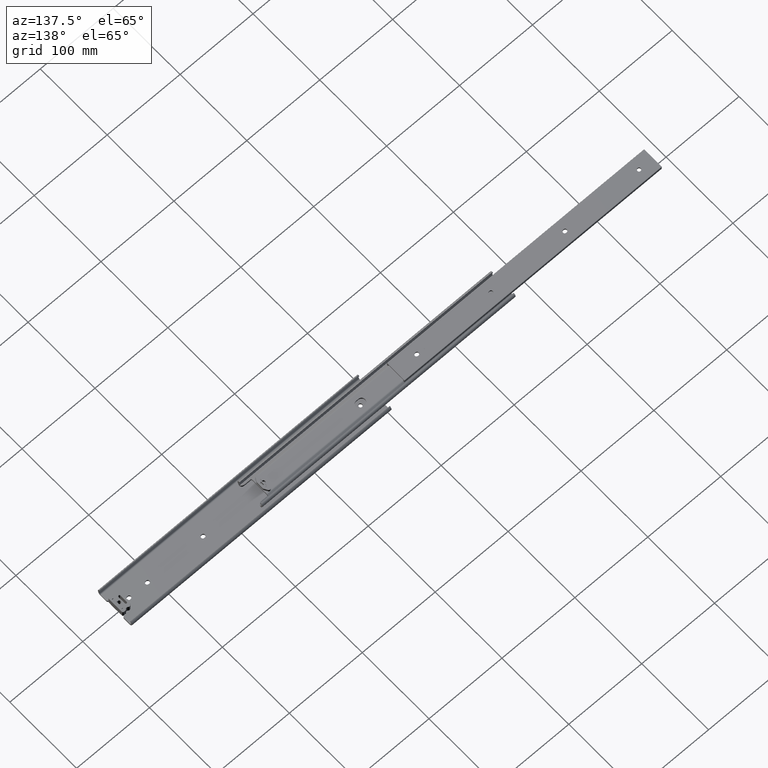
[diagram: clean part render]
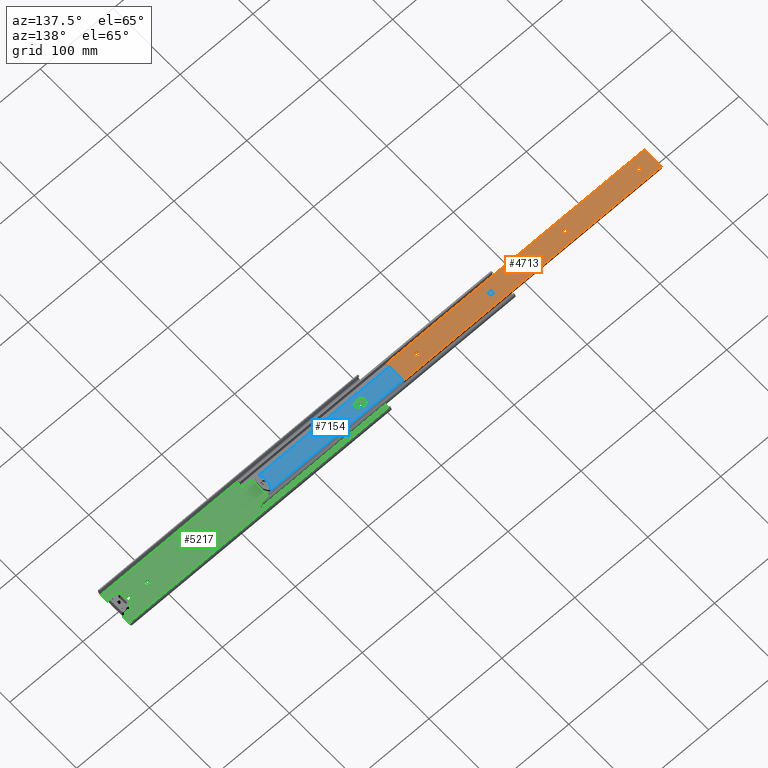
[diagram: same view with three faces highlighted in distinct colors, each labeled with its STEP entity id]
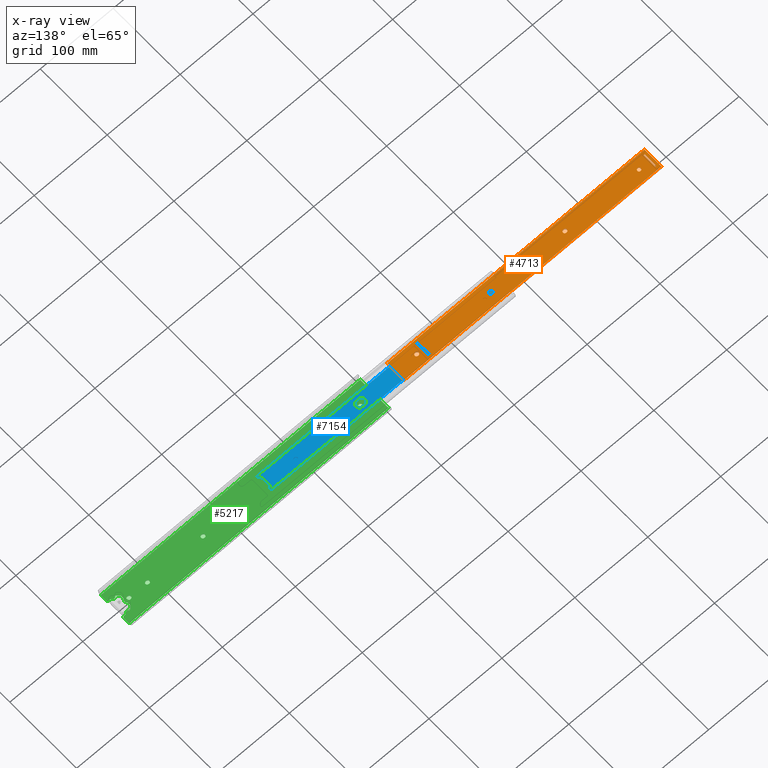
[diagram: x-ray of the same camera — body ghosted, the three highlighted faces saturated]
A machine part, auxiliary view with three faces highlighted in distinct colors.
The next image is the same camera in x-ray (body ghosted, the three faces saturated) — at least one of them is partly hidden behind the body in this view.
Their STEP definitions:

[orange] entity #4713 — the highlighted planar face has unit normal (0, -0, -1).
#37 = ORIENTED_EDGE ( 'NONE', *, *, #4243, .T. ) ;
#46 = ORIENTED_EDGE ( 'NONE', *, *, #6568, .F. ) ;
#115 = CARTESIAN_POINT ( 'NONE',  ( 222.7000000000000200, 5.686837168890518100E-015, 0.0000000000000000000 ) ) ;
#149 = ORIENTED_EDGE ( 'NONE', *, *, #6592, .F. ) ;
#155 = AXIS2_PLACEMENT_3D ( 'NONE', #115, #4363, #722 ) ;
#196 = ORIENTED_EDGE ( 'NONE', *, *, #5777, .F. ) ;
#210 = CARTESIAN_POINT ( 'NONE',  ( 221.8999999999999800, 2.249999999999999100, 0.0000000000000000000 ) ) ;
#229 = EDGE_CURVE ( 'NONE', #589, #2612, #2511, .T. ) ;
#238 = LINE ( 'NONE', #636, #4705 ) ;
#296 = DIRECTION ( 'NONE',  ( 1.000000000000000000, 0.0000000000000000000, 0.0000000000000000000 ) ) ;
#389 = CARTESIAN_POINT ( 'NONE',  ( 323.5000000000000000, 5.588865424958728100E-015, 0.0000000000000000000 ) ) ;
#398 = LINE ( 'NONE', #4538, #5260 ) ;
#409 = DIRECTION ( 'NONE',  ( 0.0000000000000000000, 0.0000000000000000000, 1.000000000000000000 ) ) ;
#421 = VERTEX_POINT ( 'NONE', #6195 ) ;
#439 = ORIENTED_EDGE ( 'NONE', *, *, #1254, .F. ) ;
#473 = LINE ( 'NONE', #5683, #3682 ) ;
#474 = VERTEX_POINT ( 'NONE', #5160 ) ;
#559 = VECTOR ( 'NONE', #7413, 1000.000000000000000 ) ;
#562 = EDGE_CURVE ( 'NONE', #4828, #5116, #3627, .T. ) ;
#589 = VERTEX_POINT ( 'NONE', #3966 ) ;
#596 = DIRECTION ( 'NONE',  ( 1.000000000000000000, 0.0000000000000000000, 0.0000000000000000000 ) ) ;
#621 = CARTESIAN_POINT ( 'NONE',  ( 0.0000000000000000000, -12.68064098956575800, 3.252606517456513300E-015 ) ) ;
#636 = CARTESIAN_POINT ( 'NONE',  ( 0.0000000000000000000, 12.68064098956575800, 0.0000000000000000000 ) ) ;
#668 = CARTESIAN_POINT ( 'NONE',  ( 316.0000000000000000, 8.699999999999999300, 0.0000000000000000000 ) ) ;
#722 = DIRECTION ( 'NONE',  ( 1.000000000000000000, 0.0000000000000000000, 0.0000000000000000000 ) ) ;
#779 = CARTESIAN_POINT ( 'NONE',  ( 314.4000000000000300, 8.699999999999999300, 0.0000000000000000000 ) ) ;
#785 = DIRECTION ( 'NONE',  ( 0.0000000000000000000, 0.0000000000000000000, 1.000000000000000000 ) ) ;
#804 = AXIS2_PLACEMENT_3D ( 'NONE', #7500, #873, #5127 ) ;
#824 = VECTOR ( 'NONE', #6703, 1000.000000000000000 ) ;
#873 = DIRECTION ( 'NONE',  ( 0.0000000000000000000, -1.368009296536524700E-016, -1.000000000000000000 ) ) ;
#884 = VERTEX_POINT ( 'NONE', #5034 ) ;
#893 = CARTESIAN_POINT ( 'NONE',  ( 221.8999999999999800, 5.588865424958728100E-015, 0.0000000000000000000 ) ) ;
#919 = CARTESIAN_POINT ( 'NONE',  ( 323.5000000000000000, -2.249999999999998700, 2.042525567697525300E-015 ) ) ;
#939 = ORIENTED_EDGE ( 'NONE', *, *, #5005, .F. ) ;
#940 = ORIENTED_EDGE ( 'NONE', *, *, #3095, .F. ) ;
#945 = CARTESIAN_POINT ( 'NONE',  ( 21.35000000000000500, 0.0000000000000000000, 0.0000000000000000000 ) ) ;
#965 = VECTOR ( 'NONE', #4742, 1000.000000000000000 ) ;
#1007 = DIRECTION ( 'NONE',  ( 1.000000000000000000, 0.0000000000000000000, 0.0000000000000000000 ) ) ;
#1042 = EDGE_CURVE ( 'NONE', #3579, #3385, #473, .T. ) ;
#1061 = LINE ( 'NONE', #210, #4276 ) ;
#1068 = EDGE_CURVE ( 'NONE', #884, #589, #6531, .T. ) ;
#1074 = VERTEX_POINT ( 'NONE', #3005 ) ;
#1114 = VERTEX_POINT ( 'NONE', #3637 ) ;
#1125 = VERTEX_POINT ( 'NONE', #3664 ) ;
#1156 = CARTESIAN_POINT ( 'NONE',  ( 316.0000000000000000, 8.699999999999999300, 0.0000000000000000000 ) ) ;
#1182 = CIRCLE ( 'NONE', #7689, 2.250000000000001800 ) ;
#1198 = CARTESIAN_POINT ( 'NONE',  ( 314.4000000000000300, 8.699999999999999300, 0.0000000000000000000 ) ) ;
#1254 = EDGE_CURVE ( 'NONE', #6296, #6202, #6787, .T. ) ;
#1265 = EDGE_CURVE ( 'NONE', #5116, #5092, #3773, .T. ) ;
#1268 = CARTESIAN_POINT ( 'NONE',  ( 121.1000000000000100, 5.686837168890518100E-015, 0.0000000000000000000 ) ) ;
#1346 = VERTEX_POINT ( 'NONE', #5089 ) ;
#1375 = AXIS2_PLACEMENT_3D ( 'NONE', #389, #4629, #1007 ) ;
#1474 = FACE_BOUND ( 'NONE', #2027, .T. ) ;
#1493 = CARTESIAN_POINT ( 'NONE',  ( 5.000000000000000000, 8.699999999999999300, 0.0000000000000000000 ) ) ;
#1502 = DIRECTION ( 'NONE',  ( 1.000000000000000000, 0.0000000000000000000, 0.0000000000000000000 ) ) ;
#1508 = EDGE_CURVE ( 'NONE', #3385, #1346, #5128, .T. ) ;
#1511 = ORIENTED_EDGE ( 'NONE', *, *, #6140, .F. ) ;
#1521 = ORIENTED_EDGE ( 'NONE', *, *, #5046, .F. ) ;
#1592 = CARTESIAN_POINT ( 'NONE',  ( 352.8000000000000100, 12.68064098956575800, 0.0000000000000000000 ) ) ;
#1608 = CIRCLE ( 'NONE', #6597, 2.249999999999974200 ) ;
#1631 = VECTOR ( 'NONE', #4760, 1000.000000000000000 ) ;
#1770 = CARTESIAN_POINT ( 'NONE',  ( 352.8000000000000100, 12.68064098956575800, 0.0000000000000000000 ) ) ;
#1833 = AXIS2_PLACEMENT_3D ( 'NONE', #2652, #6858, #3240 ) ;
#1850 = EDGE_LOOP ( 'NONE', ( #5401, #149, #7198, #7734, #2251 ) ) ;
#1897 = VECTOR ( 'NONE', #2378, 1000.000000000000000 ) ;
#1980 = VECTOR ( 'NONE', #5028, 1000.000000000000000 ) ;
#2027 = EDGE_LOOP ( 'NONE', ( #1521, #940, #2985, #5983 ) ) ;
#2057 = VECTOR ( 'NONE', #7356, 1000.000000000000000 ) ;
#2108 = DIRECTION ( 'NONE',  ( 0.0000000000000000000, 0.0000000000000000000, 1.000000000000000000 ) ) ;
#2144 = VERTEX_POINT ( 'NONE', #4236 ) ;
#2196 = VERTEX_POINT ( 'NONE', #5565 ) ;
#2251 = ORIENTED_EDGE ( 'NONE', *, *, #229, .F. ) ;
#2254 = DIRECTION ( 'NONE',  ( 0.0000000000000000000, 0.0000000000000000000, 1.000000000000000000 ) ) ;
#2291 = LINE ( 'NONE', #6527, #6913 ) ;
#2357 = VERTEX_POINT ( 'NONE', #1493 ) ;
#2371 = CARTESIAN_POINT ( 'NONE',  ( 222.7000000000000200, 5.686837168890518100E-015, 0.0000000000000000000 ) ) ;
#2372 = EDGE_CURVE ( 'NONE', #6202, #4897, #398, .T. ) ;
#2378 = DIRECTION ( 'NONE',  ( 0.0000000000000000000, -1.000000000000000000, 1.368009296536524700E-016 ) ) ;
#2436 = LINE ( 'NONE', #4123, #824 ) ;
#2496 = ORIENTED_EDGE ( 'NONE', *, *, #4291, .F. ) ;
#2511 = CIRCLE ( 'NONE', #6866, 2.250000000000001800 ) ;
#2529 = CARTESIAN_POINT ( 'NONE',  ( 120.3000000000000000, 2.249999999999999100, 0.0000000000000000000 ) ) ;
#2576 = LINE ( 'NONE', #7130, #965 ) ;
#2607 = AXIS2_PLACEMENT_3D ( 'NONE', #5874, #2254, #6481 ) ;
#2612 = VERTEX_POINT ( 'NONE', #3722 ) ;
#2652 = CARTESIAN_POINT ( 'NONE',  ( 121.1000000000000100, 5.686837168890518100E-015, 0.0000000000000000000 ) ) ;
#2658 = VERTEX_POINT ( 'NONE', #6197 ) ;
#2669 = EDGE_LOOP ( 'NONE', ( #6522, #46, #5253, #2708, #4036 ) ) ;
#2708 = ORIENTED_EDGE ( 'NONE', *, *, #7341, .F. ) ;
#2730 = EDGE_CURVE ( 'NONE', #2612, #4729, #5985, .T. ) ;
#2857 = VECTOR ( 'NONE', #4784, 1000.000000000000000 ) ;
#2880 = VERTEX_POINT ( 'NONE', #5824 ) ;
#2974 = EDGE_CURVE ( 'NONE', #4729, #4310, #2291, .T. ) ;
#2981 = DIRECTION ( 'NONE',  ( 1.000000000000000000, 0.0000000000000000000, 0.0000000000000000000 ) ) ;
#2985 = ORIENTED_EDGE ( 'NONE', *, *, #6107, .F. ) ;
#3004 = CARTESIAN_POINT ( 'NONE',  ( 3.400000000000002100, -8.699999999999999300, 0.0000000000000000000 ) ) ;
#3005 = CARTESIAN_POINT ( 'NONE',  ( 16.85000000000000100, 2.755455298081548200E-016, 0.0000000000000000000 ) ) ;
#3013 = CARTESIAN_POINT ( 'NONE',  ( 324.3000000000000100, 5.686837168890518100E-015, 0.0000000000000000000 ) ) ;
#3079 = FACE_BOUND ( 'NONE', #6258, .T. ) ;
#3095 = EDGE_CURVE ( 'NONE', #2144, #3927, #6174, .T. ) ;
#3147 = DIRECTION ( 'NONE',  ( 1.000000000000000000, 0.0000000000000000000, 0.0000000000000000000 ) ) ;
#3190 = EDGE_CURVE ( 'NONE', #4828, #474, #2576, .T. ) ;
#3215 = CIRCLE ( 'NONE', #1375, 2.249999999999974200 ) ;
#3240 = DIRECTION ( 'NONE',  ( 1.000000000000000000, 0.0000000000000000000, 0.0000000000000000000 ) ) ;
#3264 = FACE_BOUND ( 'NONE', #7129, .T. ) ;
#3269 = ORIENTED_EDGE ( 'NONE', *, *, #5741, .F. ) ;
#3341 = ORIENTED_EDGE ( 'NONE', *, *, #1265, .F. ) ;
#3385 = VERTEX_POINT ( 'NONE', #6169 ) ;
#3392 = EDGE_CURVE ( 'NONE', #2196, #5411, #5705, .T. ) ;
#3498 = VECTOR ( 'NONE', #7230, 1000.000000000000000 ) ;
#3579 = VERTEX_POINT ( 'NONE', #919 ) ;
#3608 = VERTEX_POINT ( 'NONE', #945 ) ;
#3622 = DIRECTION ( 'NONE',  ( 1.000000000000000000, 0.0000000000000000000, 0.0000000000000000000 ) ) ;
#3627 = LINE ( 'NONE', #1770, #1897 ) ;
#3637 = CARTESIAN_POINT ( 'NONE',  ( 324.3000000000000100, 2.249999999999999100, 0.0000000000000000000 ) ) ;
#3664 = CARTESIAN_POINT ( 'NONE',  ( 221.8999999999999800, 2.249999999999999100, 0.0000000000000000000 ) ) ;
#3682 = VECTOR ( 'NONE', #296, 1000.000000000000000 ) ;
#3717 = ORIENTED_EDGE ( 'NONE', *, *, #7426, .F. ) ;
#3722 = CARTESIAN_POINT ( 'NONE',  ( 123.3500000000000100, 5.686837168890518100E-015, 0.0000000000000000000 ) ) ;
#3757 = VERTEX_POINT ( 'NONE', #5515 ) ;
#3765 = EDGE_CURVE ( 'NONE', #4439, #2357, #2436, .T. ) ;
#3773 = LINE ( 'NONE', #5000, #1980 ) ;
#3831 = EDGE_CURVE ( 'NONE', #1114, #2880, #5296, .T. ) ;
#3833 = VECTOR ( 'NONE', #596, 1000.000000000000000 ) ;
#3927 = VERTEX_POINT ( 'NONE', #7437 ) ;
#3930 = DIRECTION ( 'NONE',  ( 0.0000000000000000000, -1.000000000000000000, 0.0000000000000000000 ) ) ;
#3966 = CARTESIAN_POINT ( 'NONE',  ( 121.1000000000000100, -2.249999999999993300, 0.0000000000000000000 ) ) ;
#3969 = CIRCLE ( 'NONE', #5945, 2.250000000000001800 ) ;
#4034 = CARTESIAN_POINT ( 'NONE',  ( 324.3000000000000100, 5.686837168890518100E-015, 0.0000000000000000000 ) ) ;
#4036 = ORIENTED_EDGE ( 'NONE', *, *, #1508, .F. ) ;
#4072 = CARTESIAN_POINT ( 'NONE',  ( 314.4000000000000300, -8.699999999999997500, 2.924891563963583700E-015 ) ) ;
#4096 = DIRECTION ( 'NONE',  ( 1.000000000000000000, 0.0000000000000000000, 0.0000000000000000000 ) ) ;
#4123 = CARTESIAN_POINT ( 'NONE',  ( 5.000000000000000000, 8.699999999999999300, 0.0000000000000000000 ) ) ;
#4217 = CARTESIAN_POINT ( 'NONE',  ( 3.399999999999999900, 8.699999999999999300, 0.0000000000000000000 ) ) ;
#4236 = CARTESIAN_POINT ( 'NONE',  ( 3.399999999999999900, 8.699999999999999300, 0.0000000000000000000 ) ) ;
#4243 = EDGE_CURVE ( 'NONE', #474, #5092, #238, .T. ) ;
#4274 = CARTESIAN_POINT ( 'NONE',  ( 352.8000000000000100, -12.68064098956575800, 3.252606517456513300E-015 ) ) ;
#4276 = VECTOR ( 'NONE', #5668, 1000.000000000000000 ) ;
#4291 = EDGE_CURVE ( 'NONE', #4897, #421, #4515, .T. ) ;
#4310 = VERTEX_POINT ( 'NONE', #2529 ) ;
#4321 = CARTESIAN_POINT ( 'NONE',  ( 314.4000000000000300, -8.699999999999999300, 0.0000000000000000000 ) ) ;
#4353 = ORIENTED_EDGE ( 'NONE', *, *, #3392, .F. ) ;
#4363 = DIRECTION ( 'NONE',  ( 0.0000000000000000000, 0.0000000000000000000, 1.000000000000000000 ) ) ;
#4418 = CARTESIAN_POINT ( 'NONE',  ( 19.10000000000000100, 0.0000000000000000000, 0.0000000000000000000 ) ) ;
#4439 = VERTEX_POINT ( 'NONE', #6844 ) ;
#4509 = FACE_OUTER_BOUND ( 'NONE', #5490, .T. ) ;
#4512 = ORIENTED_EDGE ( 'NONE', *, *, #3190, .T. ) ;
#4515 = LINE ( 'NONE', #4321, #6119 ) ;
#4538 = CARTESIAN_POINT ( 'NONE',  ( 314.4000000000000300, 8.699999999999999300, 0.0000000000000000000 ) ) ;
#4570 = VECTOR ( 'NONE', #6649, 1000.000000000000000 ) ;
#4617 = EDGE_CURVE ( 'NONE', #1074, #3608, #5285, .T. ) ;
#4629 = DIRECTION ( 'NONE',  ( 0.0000000000000000000, 0.0000000000000000000, 1.000000000000000000 ) ) ;
#4652 = DIRECTION ( 'NONE',  ( 1.000000000000000000, 0.0000000000000000000, 0.0000000000000000000 ) ) ;
#4659 = LINE ( 'NONE', #1156, #2857 ) ;
#4699 = FACE_BOUND ( 'NONE', #2669, .T. ) ;
#4705 = VECTOR ( 'NONE', #5504, 1000.000000000000000 ) ;
#4707 = DIRECTION ( 'NONE',  ( -1.000000000000000000, -0.0000000000000000000, -0.0000000000000000000 ) ) ;
#4713 = ADVANCED_FACE ( 'NONE', ( #3264, #1474, #4699, #3079, #7707, #6114, #4509 ), #5100, .F. ) ;
#4729 = VERTEX_POINT ( 'NONE', #5730 ) ;
#4742 = DIRECTION ( 'NONE',  ( -1.000000000000000000, -0.0000000000000000000, -0.0000000000000000000 ) ) ;
#4760 = DIRECTION ( 'NONE',  ( -1.000000000000000000, -0.0000000000000000000, -0.0000000000000000000 ) ) ;
#4784 = DIRECTION ( 'NONE',  ( -0.0000000000000000000, 1.000000000000000000, -0.0000000000000000000 ) ) ;
#4828 = VERTEX_POINT ( 'NONE', #1592 ) ;
#4897 = VERTEX_POINT ( 'NONE', #4072 ) ;
#5000 = CARTESIAN_POINT ( 'NONE',  ( 352.8000000000000100, -12.68064098956575800, 3.252606517456513300E-015 ) ) ;
#5005 = EDGE_CURVE ( 'NONE', #5411, #2658, #1182, .T. ) ;
#5028 = DIRECTION ( 'NONE',  ( -1.000000000000000000, -0.0000000000000000000, -0.0000000000000000000 ) ) ;
#5030 = AXIS2_PLACEMENT_3D ( 'NONE', #4418, #785, #5042 ) ;
#5034 = CARTESIAN_POINT ( 'NONE',  ( 120.3000000000000000, -2.249999999999998700, 2.042525567697525300E-015 ) ) ;
#5042 = DIRECTION ( 'NONE',  ( 1.000000000000000000, 0.0000000000000000000, 0.0000000000000000000 ) ) ;
#5046 = EDGE_CURVE ( 'NONE', #3927, #4439, #5463, .T. ) ;
#5089 = CARTESIAN_POINT ( 'NONE',  ( 326.5500000000000100, 5.686837168890518100E-015, 0.0000000000000000000 ) ) ;
#5092 = VERTEX_POINT ( 'NONE', #621 ) ;
#5100 = PLANE ( 'NONE',  #804 ) ;
#5116 = VERTEX_POINT ( 'NONE', #4274 ) ;
#5127 = DIRECTION ( 'NONE',  ( 0.0000000000000000000, 1.000000000000000000, -1.368009296536524700E-016 ) ) ;
#5128 = CIRCLE ( 'NONE', #5452, 2.249999999999974200 ) ;
#5155 = DIRECTION ( 'NONE',  ( 0.0000000000000000000, 0.0000000000000000000, 1.000000000000000000 ) ) ;
#5160 = CARTESIAN_POINT ( 'NONE',  ( 0.0000000000000000000, 12.68064098956575800, 0.0000000000000000000 ) ) ;
#5253 = ORIENTED_EDGE ( 'NONE', *, *, #3831, .F. ) ;
#5260 = VECTOR ( 'NONE', #3930, 1000.000000000000000 ) ;
#5268 = EDGE_LOOP ( 'NONE', ( #196, #5554 ) ) ;
#5273 = ORIENTED_EDGE ( 'NONE', *, *, #7221, .F. ) ;
#5285 = CIRCLE ( 'NONE', #5030, 2.250000000000001800 ) ;
#5296 = LINE ( 'NONE', #7332, #2057 ) ;
#5401 = ORIENTED_EDGE ( 'NONE', *, *, #1068, .F. ) ;
#5411 = VERTEX_POINT ( 'NONE', #7756 ) ;
#5452 = AXIS2_PLACEMENT_3D ( 'NONE', #3013, #7239, #3622 ) ;
#5463 = LINE ( 'NONE', #3004, #3833 ) ;
#5490 = EDGE_LOOP ( 'NONE', ( #37, #3341, #6485, #4512 ) ) ;
#5504 = DIRECTION ( 'NONE',  ( 0.0000000000000000000, -1.000000000000000000, 1.368009296536524700E-016 ) ) ;
#5515 = CARTESIAN_POINT ( 'NONE',  ( 221.8999999999999800, -2.249999999999998700, 2.042525567697525300E-015 ) ) ;
#5529 = DIRECTION ( 'NONE',  ( 0.0000000000000000000, 0.0000000000000000000, 1.000000000000000000 ) ) ;
#5530 = CIRCLE ( 'NONE', #7240, 2.250000000000001800 ) ;
#5554 = ORIENTED_EDGE ( 'NONE', *, *, #4617, .F. ) ;
#5565 = CARTESIAN_POINT ( 'NONE',  ( 222.7000000000000200, -2.249999999999993300, 0.0000000000000000000 ) ) ;
#5652 = ORIENTED_EDGE ( 'NONE', *, *, #2372, .F. ) ;
#5668 = DIRECTION ( 'NONE',  ( -1.000000000000000000, -0.0000000000000000000, -0.0000000000000000000 ) ) ;
#5683 = CARTESIAN_POINT ( 'NONE',  ( 323.5000000000000000, -2.249999999999999100, 0.0000000000000000000 ) ) ;
#5690 = LINE ( 'NONE', #7093, #5862 ) ;
#5705 = CIRCLE ( 'NONE', #155, 2.250000000000001800 ) ;
#5730 = CARTESIAN_POINT ( 'NONE',  ( 121.1000000000000100, 2.249999999999999100, 0.0000000000000000000 ) ) ;
#5740 = CARTESIAN_POINT ( 'NONE',  ( 19.10000000000000100, 0.0000000000000000000, 0.0000000000000000000 ) ) ;
#5741 = EDGE_CURVE ( 'NONE', #2658, #1125, #1061, .T. ) ;
#5777 = EDGE_CURVE ( 'NONE', #3608, #1074, #5530, .T. ) ;
#5824 = CARTESIAN_POINT ( 'NONE',  ( 323.5000000000000000, 2.249999999999999100, 0.0000000000000000000 ) ) ;
#5862 = VECTOR ( 'NONE', #4096, 1000.000000000000000 ) ;
#5874 = CARTESIAN_POINT ( 'NONE',  ( 120.3000000000000000, 5.588865424958728100E-015, 0.0000000000000000000 ) ) ;
#5945 = AXIS2_PLACEMENT_3D ( 'NONE', #893, #5155, #1502 ) ;
#5983 = ORIENTED_EDGE ( 'NONE', *, *, #3765, .F. ) ;
#5985 = CIRCLE ( 'NONE', #1833, 2.250000000000001800 ) ;
#6021 = CARTESIAN_POINT ( 'NONE',  ( 120.3000000000000000, -2.249999999999999100, 0.0000000000000000000 ) ) ;
#6107 = EDGE_CURVE ( 'NONE', #2357, #2144, #6271, .T. ) ;
#6114 = FACE_BOUND ( 'NONE', #5268, .T. ) ;
#6119 = VECTOR ( 'NONE', #7326, 1000.000000000000000 ) ;
#6140 = EDGE_CURVE ( 'NONE', #421, #6296, #4659, .T. ) ;
#6169 = CARTESIAN_POINT ( 'NONE',  ( 324.3000000000000100, -2.249999999999993300, 0.0000000000000000000 ) ) ;
#6174 = LINE ( 'NONE', #4217, #4570 ) ;
#6195 = CARTESIAN_POINT ( 'NONE',  ( 316.0000000000000000, -8.699999999999999300, 0.0000000000000000000 ) ) ;
#6197 = CARTESIAN_POINT ( 'NONE',  ( 222.7000000000000200, 2.249999999999999100, 0.0000000000000000000 ) ) ;
#6202 = VERTEX_POINT ( 'NONE', #1198 ) ;
#6258 = EDGE_LOOP ( 'NONE', ( #3717, #5273, #3269, #939, #4353 ) ) ;
#6271 = LINE ( 'NONE', #6554, #1631 ) ;
#6296 = VERTEX_POINT ( 'NONE', #668 ) ;
#6340 = DIRECTION ( 'NONE',  ( 1.000000000000000000, 0.0000000000000000000, 0.0000000000000000000 ) ) ;
#6447 = CIRCLE ( 'NONE', #2607, 2.250000000000001800 ) ;
#6481 = DIRECTION ( 'NONE',  ( 1.000000000000000000, 0.0000000000000000000, 0.0000000000000000000 ) ) ;
#6485 = ORIENTED_EDGE ( 'NONE', *, *, #562, .F. ) ;
#6522 = ORIENTED_EDGE ( 'NONE', *, *, #1042, .F. ) ;
#6527 = CARTESIAN_POINT ( 'NONE',  ( 120.3000000000000000, 2.249999999999999100, 0.0000000000000000000 ) ) ;
#6531 = LINE ( 'NONE', #6021, #3498 ) ;
#6554 = CARTESIAN_POINT ( 'NONE',  ( 3.399999999999999900, 8.699999999999999300, 0.0000000000000000000 ) ) ;
#6568 = EDGE_CURVE ( 'NONE', #2880, #3579, #3215, .T. ) ;
#6592 = EDGE_CURVE ( 'NONE', #4310, #884, #6447, .T. ) ;
#6597 = AXIS2_PLACEMENT_3D ( 'NONE', #4034, #409, #4652 ) ;
#6600 = DIRECTION ( 'NONE',  ( 0.0000000000000000000, 0.0000000000000000000, 1.000000000000000000 ) ) ;
#6649 = DIRECTION ( 'NONE',  ( 1.246209393661499400E-016, -1.000000000000000000, 0.0000000000000000000 ) ) ;
#6703 = DIRECTION ( 'NONE',  ( -9.969675149291995700E-017, 1.000000000000000000, -0.0000000000000000000 ) ) ;
#6787 = LINE ( 'NONE', #779, #559 ) ;
#6844 = CARTESIAN_POINT ( 'NONE',  ( 5.000000000000001800, -8.699999999999999300, 0.0000000000000000000 ) ) ;
#6858 = DIRECTION ( 'NONE',  ( 0.0000000000000000000, 0.0000000000000000000, 1.000000000000000000 ) ) ;
#6866 = AXIS2_PLACEMENT_3D ( 'NONE', #1268, #5529, #3147 ) ;
#6913 = VECTOR ( 'NONE', #4707, 1000.000000000000000 ) ;
#7093 = CARTESIAN_POINT ( 'NONE',  ( 221.8999999999999800, -2.249999999999999100, 0.0000000000000000000 ) ) ;
#7129 = EDGE_LOOP ( 'NONE', ( #2496, #5652, #439, #1511 ) ) ;
#7130 = CARTESIAN_POINT ( 'NONE',  ( 352.8000000000000100, 12.68064098956575800, 0.0000000000000000000 ) ) ;
#7198 = ORIENTED_EDGE ( 'NONE', *, *, #2974, .F. ) ;
#7221 = EDGE_CURVE ( 'NONE', #1125, #3757, #3969, .T. ) ;
#7230 = DIRECTION ( 'NONE',  ( 1.000000000000000000, 0.0000000000000000000, 0.0000000000000000000 ) ) ;
#7239 = DIRECTION ( 'NONE',  ( 0.0000000000000000000, 0.0000000000000000000, 1.000000000000000000 ) ) ;
#7240 = AXIS2_PLACEMENT_3D ( 'NONE', #5740, #2108, #6340 ) ;
#7326 = DIRECTION ( 'NONE',  ( 1.000000000000000000, 0.0000000000000000000, 0.0000000000000000000 ) ) ;
#7332 = CARTESIAN_POINT ( 'NONE',  ( 323.5000000000000000, 2.249999999999999100, 0.0000000000000000000 ) ) ;
#7341 = EDGE_CURVE ( 'NONE', #1346, #1114, #1608, .T. ) ;
#7356 = DIRECTION ( 'NONE',  ( -1.000000000000000000, -0.0000000000000000000, -0.0000000000000000000 ) ) ;
#7413 = DIRECTION ( 'NONE',  ( -1.000000000000000000, -0.0000000000000000000, -0.0000000000000000000 ) ) ;
#7426 = EDGE_CURVE ( 'NONE', #3757, #2196, #5690, .T. ) ;
#7437 = CARTESIAN_POINT ( 'NONE',  ( 3.399999999999958600, -8.699999999999997500, 2.924891563963583700E-015 ) ) ;
#7500 = CARTESIAN_POINT ( 'NONE',  ( 352.8000000000000100, 12.68064098956575800, 0.0000000000000000000 ) ) ;
#7689 = AXIS2_PLACEMENT_3D ( 'NONE', #2371, #6600, #2981 ) ;
#7707 = FACE_BOUND ( 'NONE', #1850, .T. ) ;
#7734 = ORIENTED_EDGE ( 'NONE', *, *, #2730, .F. ) ;
#7756 = CARTESIAN_POINT ( 'NONE',  ( 224.9500000000000200, 5.686837168890518100E-015, 0.0000000000000000000 ) ) ;

[blue] entity #7154 — the highlighted planar face has unit normal (0, -0, 1).
#21 = CARTESIAN_POINT ( 'NONE',  ( 116.8999999999999900, 4.750000000000011500, 1.800000000000000300 ) ) ;
#86 = CARTESIAN_POINT ( 'NONE',  ( 324.8500000000225900, 4.876873906342682500, 1.800000000000000300 ) ) ;
#147 = CARTESIAN_POINT ( 'NONE',  ( 347.1000000000000200, 10.08704672192925900, 1.800000000000001200 ) ) ;
#250 = CARTESIAN_POINT ( 'NONE',  ( 197.3000000000001000, -4.749999999999992000, 1.800000000000000300 ) ) ;
#253 = AXIS2_PLACEMENT_3D ( 'NONE', #5790, #2161, #6397 ) ;
#302 = CARTESIAN_POINT ( 'NONE',  ( 116.8999999999999900, 1.873982156574766100E-014, 1.800000000000000300 ) ) ;
#324 = CARTESIAN_POINT ( 'NONE',  ( 0.0000000000000000000, -10.08704672192925900, 1.799999999999998300 ) ) ;
#368 = ORIENTED_EDGE ( 'NONE', *, *, #634, .T. ) ;
#373 = CIRCLE ( 'NONE', #2440, 2.249999999999998700 ) ;
#376 = LINE ( 'NONE', #3358, #6627 ) ;
#380 = ORIENTED_EDGE ( 'NONE', *, *, #6183, .F. ) ;
#410 = ORIENTED_EDGE ( 'NONE', *, *, #6132, .F. ) ;
#440 = LINE ( 'NONE', #21, #1680 ) ;
#475 = CARTESIAN_POINT ( 'NONE',  ( 327.9685382111599700, 10.08704672192924600, 1.800000000000000300 ) ) ;
#487 = DIRECTION ( 'NONE',  ( 1.000000000000000000, 0.0000000000000000000, 0.0000000000000000000 ) ) ;
#593 = DIRECTION ( 'NONE',  ( -0.5000000000009275900, -0.8660254037839031400, 0.0000000000000000000 ) ) ;
#630 = CIRCLE ( 'NONE', #5317, 1.984499999997835200 ) ;
#634 = EDGE_CURVE ( 'NONE', #7070, #4280, #1529, .T. ) ;
#654 = ORIENTED_EDGE ( 'NONE', *, *, #1077, .F. ) ;
#690 = CARTESIAN_POINT ( 'NONE',  ( 327.5813725861979700, -9.607749999981596300, 1.800000000000000300 ) ) ;
#699 = DIRECTION ( 'NONE',  ( 0.0000000000000000000, 0.0000000000000000000, 1.000000000000000000 ) ) ;
#729 = DIRECTION ( 'NONE',  ( 2.775557561562891400E-014, -1.000000000000000000, -1.084202172485504400E-016 ) ) ;
#770 = VERTEX_POINT ( 'NONE', #2205 ) ;
#834 = CARTESIAN_POINT ( 'NONE',  ( 194.0999999999999900, 1.873982156574766100E-014, 1.800000000000000300 ) ) ;
#917 = DIRECTION ( 'NONE',  ( 1.000000000000000000, 0.0000000000000000000, 0.0000000000000000000 ) ) ;
#941 = VERTEX_POINT ( 'NONE', #2262 ) ;
#944 = VERTEX_POINT ( 'NONE', #1017 ) ;
#971 = EDGE_CURVE ( 'NONE', #1431, #5988, #2464, .T. ) ;
#975 = CARTESIAN_POINT ( 'NONE',  ( 194.0999999999999900, 4.750000000000011500, 1.800000000000000300 ) ) ;
#981 = EDGE_CURVE ( 'NONE', #3117, #2833, #4074, .T. ) ;
#1017 = CARTESIAN_POINT ( 'NONE',  ( 325.1179491924527800, -5.340975521452373100, 1.800000000000000300 ) ) ;
#1044 = ORIENTED_EDGE ( 'NONE', *, *, #971, .F. ) ;
#1053 = CARTESIAN_POINT ( 'NONE',  ( 27.25000000000000000, -5.307011471570958900E-016, 1.800000000000000300 ) ) ;
#1054 = VECTOR ( 'NONE', #593, 1000.000000000000000 ) ;
#1056 = ORIENTED_EDGE ( 'NONE', *, *, #4231, .F. ) ;
#1066 = CARTESIAN_POINT ( 'NONE',  ( 0.0000000000000000000, -10.08704672192925900, 1.799999999999998900 ) ) ;
#1077 = EDGE_CURVE ( 'NONE', #7091, #941, #6714, .T. ) ;
#1110 = AXIS2_PLACEMENT_3D ( 'NONE', #7719, #4118, #487 ) ;
#1202 = CARTESIAN_POINT ( 'NONE',  ( 120.1000000000000500, 1.893576505361124100E-014, 1.800000000000000300 ) ) ;
#1313 = FACE_OUTER_BOUND ( 'NONE', #3351, .T. ) ;
#1329 = DIRECTION ( 'NONE',  ( 0.0000000000000000000, 0.0000000000000000000, 1.000000000000000000 ) ) ;
#1350 = DIRECTION ( 'NONE',  ( -0.0000000000000000000, 1.182330589528540500E-016, -1.000000000000000000 ) ) ;
#1389 = DIRECTION ( 'NONE',  ( 0.0000000000000000000, 0.0000000000000000000, 1.000000000000000000 ) ) ;
#1400 = VECTOR ( 'NONE', #3948, 1000.000000000000000 ) ;
#1404 = DIRECTION ( 'NONE',  ( 0.0000000000000000000, 0.0000000000000000000, 1.000000000000000000 ) ) ;
#1431 = VERTEX_POINT ( 'NONE', #1733 ) ;
#1432 = LINE ( 'NONE', #1742, #4463 ) ;
#1434 = AXIS2_PLACEMENT_3D ( 'NONE', #4970, #1329, #5582 ) ;
#1444 = ORIENTED_EDGE ( 'NONE', *, *, #6854, .F. ) ;
#1448 = EDGE_CURVE ( 'NONE', #7735, #2769, #5691, .T. ) ;
#1450 = DIRECTION ( 'NONE',  ( 1.000000000000000000, 0.0000000000000000000, 0.0000000000000000000 ) ) ;
#1475 = EDGE_CURVE ( 'NONE', #944, #7612, #2267, .T. ) ;
#1529 = CIRCLE ( 'NONE', #3045, 2.000000000000000000 ) ;
#1570 = DIRECTION ( 'NONE',  ( -1.000000000000000000, -0.0000000000000000000, -0.0000000000000000000 ) ) ;
#1638 = CARTESIAN_POINT ( 'NONE',  ( 324.8500000000225900, 4.340975521479249400, 1.800000000000000300 ) ) ;
#1680 = VECTOR ( 'NONE', #6067, 1000.000000000000000 ) ;
#1685 = EDGE_CURVE ( 'NONE', #3180, #2833, #2547, .T. ) ;
#1733 = CARTESIAN_POINT ( 'NONE',  ( 202.0500000000000700, 1.893576505361124100E-014, 1.800000000000000300 ) ) ;
#1742 = CARTESIAN_POINT ( 'NONE',  ( 347.1000000000000200, -10.08704672192925900, 1.799999999999998300 ) ) ;
#1806 = ORIENTED_EDGE ( 'NONE', *, *, #6510, .F. ) ;
#1814 = DIRECTION ( 'NONE',  ( 1.000000000000000000, 0.0000000000000000000, 0.0000000000000000000 ) ) ;
#1846 = CIRCLE ( 'NONE', #5836, 1.984499999999167500 ) ;
#1887 = EDGE_LOOP ( 'NONE', ( #2593, #1806, #1044, #6246, #6465 ) ) ;
#1892 = CIRCLE ( 'NONE', #2619, 4.750000000000004400 ) ;
#1905 = EDGE_CURVE ( 'NONE', #770, #7091, #6239, .T. ) ;
#1932 = AXIS2_PLACEMENT_3D ( 'NONE', #1202, #5461, #1814 ) ;
#1960 = ORIENTED_EDGE ( 'NONE', *, *, #3383, .F. ) ;
#1982 = DIRECTION ( 'NONE',  ( -1.000000000000000000, -0.0000000000000000000, -0.0000000000000000000 ) ) ;
#2161 = DIRECTION ( 'NONE',  ( -0.0000000000000000000, 1.182330589528540500E-016, -1.000000000000000000 ) ) ;
#2197 = CARTESIAN_POINT ( 'NONE',  ( 197.3000000000001000, 4.750000000000011500, 1.800000000000000300 ) ) ;
#2205 = CARTESIAN_POINT ( 'NONE',  ( 120.1000000000000800, -4.749999999999992000, 1.800000000000000300 ) ) ;
#2262 = CARTESIAN_POINT ( 'NONE',  ( 120.1000000000000800, 4.750000000000011500, 1.800000000000000300 ) ) ;
#2265 = CARTESIAN_POINT ( 'NONE',  ( 124.8500000000000700, 1.893576505361124100E-014, 1.800000000000000300 ) ) ;
#2267 = LINE ( 'NONE', #7784, #3870 ) ;
#2268 = CARTESIAN_POINT ( 'NONE',  ( 116.8999999999999800, -4.750000000000011500, 1.799999999999999600 ) ) ;
#2269 = CARTESIAN_POINT ( 'NONE',  ( 120.1000000000000500, 1.893576505361124100E-014, 1.800000000000000300 ) ) ;
#2337 = CARTESIAN_POINT ( 'NONE',  ( 194.0999999999999900, -4.750000000000011500, 1.800000000000000300 ) ) ;
#2440 = AXIS2_PLACEMENT_3D ( 'NONE', #5032, #1389, #5649 ) ;
#2464 = CIRCLE ( 'NONE', #7747, 4.750000000000004400 ) ;
#2547 = LINE ( 'NONE', #147, #5396 ) ;
#2593 = ORIENTED_EDGE ( 'NONE', *, *, #3509, .F. ) ;
#2619 = AXIS2_PLACEMENT_3D ( 'NONE', #834, #5095, #1450 ) ;
#2656 = VECTOR ( 'NONE', #7157, 1000.000000000000000 ) ;
#2665 = CIRCLE ( 'NONE', #6888, 4.750000000000017800 ) ;
#2675 = CARTESIAN_POINT ( 'NONE',  ( 324.8500000000225900, -4.340975521453928300, 1.800000000000000300 ) ) ;
#2769 = VERTEX_POINT ( 'NONE', #250 ) ;
#2833 = VERTEX_POINT ( 'NONE', #3356 ) ;
#2879 = DIRECTION ( 'NONE',  ( 1.000000000000000000, 0.0000000000000000000, 0.0000000000000000000 ) ) ;
#2900 = PLANE ( 'NONE',  #5559 ) ;
#2921 = DIRECTION ( 'NONE',  ( 0.0000000000000000000, -1.182330589528540500E-016, 1.000000000000000000 ) ) ;
#3034 = LINE ( 'NONE', #86, #4081 ) ;
#3035 = ORIENTED_EDGE ( 'NONE', *, *, #981, .F. ) ;
#3045 = AXIS2_PLACEMENT_3D ( 'NONE', #3301, #1350, #729 ) ;
#3114 = FACE_BOUND ( 'NONE', #6001, .T. ) ;
#3117 = VERTEX_POINT ( 'NONE', #324 ) ;
#3180 = VERTEX_POINT ( 'NONE', #475 ) ;
#3241 = DIRECTION ( 'NONE',  ( 0.0000000000000000000, 0.0000000000000000000, 1.000000000000000000 ) ) ;
#3301 = CARTESIAN_POINT ( 'NONE',  ( 326.8500000000225900, 4.340975521479249400, 1.800000000000000500 ) ) ;
#3351 = EDGE_LOOP ( 'NONE', ( #410, #6113, #4594, #7363, #1960, #368, #380, #6049, #4237, #3035 ) ) ;
#3356 = CARTESIAN_POINT ( 'NONE',  ( 0.0000000000000000000, 10.08704672192925900, 1.800000000000001200 ) ) ;
#3358 = CARTESIAN_POINT ( 'NONE',  ( 194.0999999999999900, 4.750000000000011500, 1.800000000000000300 ) ) ;
#3383 = EDGE_CURVE ( 'NONE', #7070, #6453, #3034, .T. ) ;
#3427 = CARTESIAN_POINT ( 'NONE',  ( 327.5813725862050800, 9.607750000000907100, 1.800000000000000300 ) ) ;
#3445 = DIRECTION ( 'NONE',  ( 0.0000000000000000000, 1.000000000000000000, 1.182330589528540500E-016 ) ) ;
#3509 = EDGE_CURVE ( 'NONE', #7057, #7735, #1892, .T. ) ;
#3568 = DIRECTION ( 'NONE',  ( 0.4999999999992230700, -0.8660254037848872400, 0.0000000000000000000 ) ) ;
#3602 = ORIENTED_EDGE ( 'NONE', *, *, #6962, .F. ) ;
#3797 = EDGE_CURVE ( 'NONE', #7612, #6643, #630, .T. ) ;
#3847 = CIRCLE ( 'NONE', #1110, 4.750000000000004400 ) ;
#3870 = VECTOR ( 'NONE', #3568, 1000.000000000000000 ) ;
#3877 = EDGE_LOOP ( 'NONE', ( #4902, #1444 ) ) ;
#3921 = ORIENTED_EDGE ( 'NONE', *, *, #7809, .F. ) ;
#3948 = DIRECTION ( 'NONE',  ( 1.000000000000000000, 0.0000000000000000000, 0.0000000000000000000 ) ) ;
#4074 = LINE ( 'NONE', #1066, #7084 ) ;
#4081 = VECTOR ( 'NONE', #7337, 1000.000000000000000 ) ;
#4102 = CARTESIAN_POINT ( 'NONE',  ( 327.9685382111641200, -10.08704672192925900, 1.799999999999998300 ) ) ;
#4118 = DIRECTION ( 'NONE',  ( 0.0000000000000000000, 0.0000000000000000000, 1.000000000000000000 ) ) ;
#4152 = CIRCLE ( 'NONE', #1434, 2.249999999999998700 ) ;
#4184 = EDGE_CURVE ( 'NONE', #2769, #1431, #3847, .T. ) ;
#4215 = CARTESIAN_POINT ( 'NONE',  ( 327.5813725862055300, 9.607750000000644200, 1.800000000000000300 ) ) ;
#4231 = EDGE_CURVE ( 'NONE', #941, #5604, #440, .T. ) ;
#4237 = ORIENTED_EDGE ( 'NONE', *, *, #1685, .T. ) ;
#4265 = LINE ( 'NONE', #4215, #1054 ) ;
#4280 = VERTEX_POINT ( 'NONE', #6725 ) ;
#4325 = CARTESIAN_POINT ( 'NONE',  ( 329.3000000000145600, -8.615499999999377300, 1.800000000000000300 ) ) ;
#4432 = LINE ( 'NONE', #7565, #1400 ) ;
#4463 = VECTOR ( 'NONE', #5971, 1000.000000000000000 ) ;
#4483 = CARTESIAN_POINT ( 'NONE',  ( 197.3000000000000700, 1.893576505361124100E-014, 1.800000000000000300 ) ) ;
#4546 = DIRECTION ( 'NONE',  ( 0.0000000000000000000, 0.0000000000000000000, 1.000000000000000000 ) ) ;
#4547 = FACE_BOUND ( 'NONE', #3877, .T. ) ;
#4594 = ORIENTED_EDGE ( 'NONE', *, *, #1475, .F. ) ;
#4664 = EDGE_CURVE ( 'NONE', #3180, #7047, #1846, .T. ) ;
#4902 = ORIENTED_EDGE ( 'NONE', *, *, #7626, .F. ) ;
#4954 = DIRECTION ( 'NONE',  ( 1.000000000000000000, 0.0000000000000000000, 0.0000000000000000000 ) ) ;
#4970 = CARTESIAN_POINT ( 'NONE',  ( 25.00000000000000000, -5.307011471570958900E-016, 1.800000000000000300 ) ) ;
#5032 = CARTESIAN_POINT ( 'NONE',  ( 25.00000000000000000, -5.307011471570958900E-016, 1.800000000000000300 ) ) ;
#5095 = DIRECTION ( 'NONE',  ( 0.0000000000000000000, 0.0000000000000000000, 1.000000000000000000 ) ) ;
#5110 = DIRECTION ( 'NONE',  ( 1.000000000000000000, 0.0000000000000000000, 0.0000000000000000000 ) ) ;
#5317 = AXIS2_PLACEMENT_3D ( 'NONE', #4325, #699, #4954 ) ;
#5396 = VECTOR ( 'NONE', #1982, 1000.000000000000000 ) ;
#5461 = DIRECTION ( 'NONE',  ( 0.0000000000000000000, 0.0000000000000000000, 1.000000000000000000 ) ) ;
#5559 = AXIS2_PLACEMENT_3D ( 'NONE', #5941, #2921, #7141 ) ;
#5582 = DIRECTION ( 'NONE',  ( 1.000000000000000000, 0.0000000000000000000, 0.0000000000000000000 ) ) ;
#5604 = VERTEX_POINT ( 'NONE', #7330 ) ;
#5649 = DIRECTION ( 'NONE',  ( 1.000000000000000000, 0.0000000000000000000, 0.0000000000000000000 ) ) ;
#5691 = LINE ( 'NONE', #2337, #2656 ) ;
#5790 = CARTESIAN_POINT ( 'NONE',  ( 326.8500000000225900, -4.340975521453927400, 1.799999999999999600 ) ) ;
#5836 = AXIS2_PLACEMENT_3D ( 'NONE', #6859, #3241, #7472 ) ;
#5941 = CARTESIAN_POINT ( 'NONE',  ( 347.1000000000000200, -10.08704672192925900, 1.799999999999998900 ) ) ;
#5946 = AXIS2_PLACEMENT_3D ( 'NONE', #2269, #6500, #2879 ) ;
#5971 = DIRECTION ( 'NONE',  ( -1.000000000000000000, -0.0000000000000000000, -0.0000000000000000000 ) ) ;
#5988 = VERTEX_POINT ( 'NONE', #2197 ) ;
#6001 = EDGE_LOOP ( 'NONE', ( #3602, #1056, #654, #6440, #3921 ) ) ;
#6049 = ORIENTED_EDGE ( 'NONE', *, *, #4664, .F. ) ;
#6067 = DIRECTION ( 'NONE',  ( -1.000000000000000000, -0.0000000000000000000, -0.0000000000000000000 ) ) ;
#6113 = ORIENTED_EDGE ( 'NONE', *, *, #3797, .F. ) ;
#6132 = EDGE_CURVE ( 'NONE', #6643, #3117, #1432, .T. ) ;
#6183 = EDGE_CURVE ( 'NONE', #7047, #4280, #4265, .T. ) ;
#6239 = CIRCLE ( 'NONE', #5946, 4.750000000000017800 ) ;
#6246 = ORIENTED_EDGE ( 'NONE', *, *, #4184, .F. ) ;
#6259 = CIRCLE ( 'NONE', #253, 2.000000000000000000 ) ;
#6263 = CARTESIAN_POINT ( 'NONE',  ( 194.0999999999999900, -4.750000000000011500, 1.799999999999999600 ) ) ;
#6397 = DIRECTION ( 'NONE',  ( 0.0000000000000000000, -1.000000000000000000, -1.084202172485504400E-016 ) ) ;
#6440 = ORIENTED_EDGE ( 'NONE', *, *, #1905, .F. ) ;
#6453 = VERTEX_POINT ( 'NONE', #2675 ) ;
#6465 = ORIENTED_EDGE ( 'NONE', *, *, #1448, .F. ) ;
#6500 = DIRECTION ( 'NONE',  ( 0.0000000000000000000, 0.0000000000000000000, 1.000000000000000000 ) ) ;
#6510 = EDGE_CURVE ( 'NONE', #5988, #7057, #376, .T. ) ;
#6581 = VERTEX_POINT ( 'NONE', #7653 ) ;
#6613 = VERTEX_POINT ( 'NONE', #1053 ) ;
#6627 = VECTOR ( 'NONE', #1570, 1000.000000000000000 ) ;
#6643 = VERTEX_POINT ( 'NONE', #4102 ) ;
#6714 = CIRCLE ( 'NONE', #1932, 4.750000000000017800 ) ;
#6725 = CARTESIAN_POINT ( 'NONE',  ( 325.1179491924547200, 5.340975521481110100, 1.800000000000000300 ) ) ;
#6854 = EDGE_CURVE ( 'NONE', #6581, #6613, #373, .T. ) ;
#6859 = CARTESIAN_POINT ( 'NONE',  ( 329.3000000000145600, 8.615500000001324200, 1.800000000000000300 ) ) ;
#6888 = AXIS2_PLACEMENT_3D ( 'NONE', #302, #4546, #917 ) ;
#6962 = EDGE_CURVE ( 'NONE', #5604, #7410, #2665, .T. ) ;
#6986 = EDGE_CURVE ( 'NONE', #944, #6453, #6259, .T. ) ;
#7047 = VERTEX_POINT ( 'NONE', #3427 ) ;
#7057 = VERTEX_POINT ( 'NONE', #975 ) ;
#7070 = VERTEX_POINT ( 'NONE', #1638 ) ;
#7084 = VECTOR ( 'NONE', #3445, 1000.000000000000000 ) ;
#7091 = VERTEX_POINT ( 'NONE', #2265 ) ;
#7141 = DIRECTION ( 'NONE',  ( 0.0000000000000000000, -1.000000000000000000, -1.182330589528540500E-016 ) ) ;
#7154 = ADVANCED_FACE ( 'NONE', ( #7561, #3114, #4547, #1313 ), #2900, .T. ) ;
#7157 = DIRECTION ( 'NONE',  ( 1.000000000000000000, 0.0000000000000000000, 0.0000000000000000000 ) ) ;
#7330 = CARTESIAN_POINT ( 'NONE',  ( 116.8999999999999900, 4.750000000000011500, 1.800000000000000300 ) ) ;
#7337 = DIRECTION ( 'NONE',  ( 0.0000000000000000000, -1.000000000000000000, 0.0000000000000000000 ) ) ;
#7363 = ORIENTED_EDGE ( 'NONE', *, *, #6986, .T. ) ;
#7410 = VERTEX_POINT ( 'NONE', #2268 ) ;
#7472 = DIRECTION ( 'NONE',  ( 1.000000000000000000, 0.0000000000000000000, 0.0000000000000000000 ) ) ;
#7561 = FACE_BOUND ( 'NONE', #1887, .T. ) ;
#7565 = CARTESIAN_POINT ( 'NONE',  ( 116.8999999999999900, -4.750000000000011500, 1.800000000000000300 ) ) ;
#7612 = VERTEX_POINT ( 'NONE', #690 ) ;
#7626 = EDGE_CURVE ( 'NONE', #6613, #6581, #4152, .T. ) ;
#7653 = CARTESIAN_POINT ( 'NONE',  ( 22.75000000000000400, -2.551556173489414600E-016, 1.800000000000000300 ) ) ;
#7719 = CARTESIAN_POINT ( 'NONE',  ( 197.3000000000000700, 1.893576505361124100E-014, 1.800000000000000300 ) ) ;
#7735 = VERTEX_POINT ( 'NONE', #6263 ) ;
#7747 = AXIS2_PLACEMENT_3D ( 'NONE', #4483, #1404, #5110 ) ;
#7784 = CARTESIAN_POINT ( 'NONE',  ( 324.8500000000225900, -4.876873906315207600, 1.800000000000000300 ) ) ;
#7809 = EDGE_CURVE ( 'NONE', #7410, #770, #4432, .T. ) ;

[green] entity #5217 — the highlighted planar face has unit normal (0, 0, 1).
#26 = ORIENTED_EDGE ( 'NONE', *, *, #6371, .T. ) ;
#40 = EDGE_CURVE ( 'NONE', #1413, #795, #7038, .T. ) ;
#56 = DIRECTION ( 'NONE',  ( 1.000000000000000000, 0.0000000000000000000, 0.0000000000000000000 ) ) ;
#64 = VECTOR ( 'NONE', #7261, 1000.000000000000000 ) ;
#81 = VERTEX_POINT ( 'NONE', #903 ) ;
#84 = DIRECTION ( 'NONE',  ( -0.0000000000000000000, -0.0000000000000000000, -1.000000000000000000 ) ) ;
#132 = VECTOR ( 'NONE', #5340, 1000.000000000000000 ) ;
#160 = CARTESIAN_POINT ( 'NONE',  ( 353.6000000000000200, -11.34999999999999800, 1.799999999999928300 ) ) ;
#165 = VERTEX_POINT ( 'NONE', #6971 ) ;
#185 = CARTESIAN_POINT ( 'NONE',  ( 44.09999999999999400, -2.250000000000000000, 1.799999999999928300 ) ) ;
#205 = FACE_BOUND ( 'NONE', #4753, .T. ) ;
#216 = EDGE_CURVE ( 'NONE', #4797, #7412, #4122, .T. ) ;
#226 = CARTESIAN_POINT ( 'NONE',  ( 355.6000000000000200, -21.29985872422196300, 1.799999999999928300 ) ) ;
#228 = AXIS2_PLACEMENT_3D ( 'NONE', #6387, #5775, #2175 ) ;
#245 = EDGE_CURVE ( 'NONE', #2706, #6149, #5738, .T. ) ;
#246 = DIRECTION ( 'NONE',  ( 0.0000000000000000000, 0.0000000000000000000, 1.000000000000000000 ) ) ;
#252 = EDGE_CURVE ( 'NONE', #7219, #2691, #900, .T. ) ;
#328 = CARTESIAN_POINT ( 'NONE',  ( 355.6000000000000200, 2.250000000000000000, 1.799999999999928300 ) ) ;
#334 = DIRECTION ( 'NONE',  ( 1.000000000000000000, 0.0000000000000000000, -0.0000000000000000000 ) ) ;
#339 = DIRECTION ( 'NONE',  ( 1.000000000000000000, 0.0000000000000000000, 0.0000000000000000000 ) ) ;
#403 = FACE_BOUND ( 'NONE', #4113, .T. ) ;
#408 = DIRECTION ( 'NONE',  ( 1.000000000000000000, 0.0000000000000000000, 0.0000000000000000000 ) ) ;
#415 = DIRECTION ( 'NONE',  ( -0.0000000000000000000, -0.0000000000000000000, -1.000000000000000000 ) ) ;
#417 = CARTESIAN_POINT ( 'NONE',  ( 355.6000000000000200, -13.34999999999999800, 1.799999999999928300 ) ) ;
#432 = VERTEX_POINT ( 'NONE', #7802 ) ;
#450 = EDGE_CURVE ( 'NONE', #2734, #1879, #7414, .T. ) ;
#484 = EDGE_CURVE ( 'NONE', #4853, #5062, #2972, .T. ) ;
#485 = LINE ( 'NONE', #2930, #667 ) ;
#499 = AXIS2_PLACEMENT_3D ( 'NONE', #3187, #7421, #3801 ) ;
#508 = VERTEX_POINT ( 'NONE', #6299 ) ;
#512 = AXIS2_PLACEMENT_3D ( 'NONE', #4041, #415, #4657 ) ;
#514 = EDGE_CURVE ( 'NONE', #1378, #5041, #2408, .T. ) ;
#526 = ORIENTED_EDGE ( 'NONE', *, *, #4923, .F. ) ;
#543 = DIRECTION ( 'NONE',  ( 0.0000000000000000000, 0.0000000000000000000, 1.000000000000000000 ) ) ;
#557 = ORIENTED_EDGE ( 'NONE', *, *, #5352, .T. ) ;
#614 = DIRECTION ( 'NONE',  ( -0.7071067811865541200, 0.7071067811865408000, 0.0000000000000000000 ) ) ;
#626 = VECTOR ( 'NONE', #614, 1000.000000000000100 ) ;
#631 = CARTESIAN_POINT ( 'NONE',  ( 355.6000000000000200, 0.0000000000000000000, 1.799999999999928300 ) ) ;
#642 = LINE ( 'NONE', #7749, #3672 ) ;
#667 = VECTOR ( 'NONE', #1128, 1000.000000000000000 ) ;
#670 = CARTESIAN_POINT ( 'NONE',  ( 0.0000000000000000000, -21.29985872422196300, 1.799999999999928300 ) ) ;
#672 = DIRECTION ( 'NONE',  ( -0.0000000000000000000, -0.0000000000000000000, -1.000000000000000000 ) ) ;
#678 = DIRECTION ( 'NONE',  ( -1.000000000000000000, -0.0000000000000000000, 0.0000000000000000000 ) ) ;
#680 = VERTEX_POINT ( 'NONE', #6779 ) ;
#685 = EDGE_CURVE ( 'NONE', #1403, #81, #3124, .T. ) ;
#728 = EDGE_CURVE ( 'NONE', #680, #4776, #960, .T. ) ;
#793 = DIRECTION ( 'NONE',  ( 1.000000000000000000, -5.102127870519999300E-016, 0.0000000000000000000 ) ) ;
#795 = VERTEX_POINT ( 'NONE', #160 ) ;
#841 = LINE ( 'NONE', #631, #64 ) ;
#846 = ORIENTED_EDGE ( 'NONE', *, *, #2967, .T. ) ;
#849 = VERTEX_POINT ( 'NONE', #3160 ) ;
#866 = DIRECTION ( 'NONE',  ( -0.0000000000000000000, -0.0000000000000000000, -1.000000000000000000 ) ) ;
#877 = VECTOR ( 'NONE', #7651, 1000.000000000000000 ) ;
#882 = CARTESIAN_POINT ( 'NONE',  ( 310.7999999999999500, 5.325188282918731300E-015, 1.799999999999928300 ) ) ;
#890 = EDGE_CURVE ( 'NONE', #4544, #2333, #1795, .T. ) ;
#900 = CIRCLE ( 'NONE', #228, 2.250000000000001800 ) ;
#902 = CARTESIAN_POINT ( 'NONE',  ( 345.1999092650149200, 8.599909265014511900, 1.799999999999928300 ) ) ;
#903 = CARTESIAN_POINT ( 'NONE',  ( 343.7856957026418200, 10.01412282738758600, 1.799999999999928300 ) ) ;
#920 = DIRECTION ( 'NONE',  ( -1.000000000000000000, -0.0000000000000000000, -0.0000000000000000000 ) ) ;
#925 = DIRECTION ( 'NONE',  ( 0.0000000000000000000, 0.0000000000000000000, 1.000000000000000000 ) ) ;
#956 = CARTESIAN_POINT ( 'NONE',  ( 341.1999999999996500, 3.442382895611745000, 1.799999999999928300 ) ) ;
#960 = CIRCLE ( 'NONE', #6689, 2.250000000000001800 ) ;
#962 = DIRECTION ( 'NONE',  ( 0.0000000000000000000, 0.0000000000000000000, 1.000000000000000000 ) ) ;
#977 = CIRCLE ( 'NONE', #7785, 2.249999999999974200 ) ;
#990 = ORIENTED_EDGE ( 'NONE', *, *, #450, .F. ) ;
#1013 = ORIENTED_EDGE ( 'NONE', *, *, #3988, .T. ) ;
#1067 = CIRCLE ( 'NONE', #512, 2.249999999999998700 ) ;
#1072 = ORIENTED_EDGE ( 'NONE', *, *, #3620, .T. ) ;
#1091 = CARTESIAN_POINT ( 'NONE',  ( 355.6000000000000200, -11.35000000000000000, 1.799999999999928300 ) ) ;
#1126 = VERTEX_POINT ( 'NONE', #3056 ) ;
#1128 = DIRECTION ( 'NONE',  ( -0.7071067811865441300, -0.7071067811865510100, 0.0000000000000000000 ) ) ;
#1140 = LINE ( 'NONE', #328, #2564 ) ;
#1148 = LINE ( 'NONE', #7153, #2374 ) ;
#1150 = EDGE_CURVE ( 'NONE', #5773, #3659, #7562, .T. ) ;
#1158 = EDGE_CURVE ( 'NONE', #5251, #1879, #5961, .T. ) ;
#1232 = VECTOR ( 'NONE', #678, 1000.000000000000000 ) ;
#1235 = AXIS2_PLACEMENT_3D ( 'NONE', #7643, #4033, #408 ) ;
#1264 = ORIENTED_EDGE ( 'NONE', *, *, #514, .T. ) ;
#1284 = CARTESIAN_POINT ( 'NONE',  ( 337.0000000000000000, 5.374174154884625500E-015, 1.799999999999928300 ) ) ;
#1290 = DIRECTION ( 'NONE',  ( 0.0000000000000000000, 1.000000000000000000, 0.0000000000000000000 ) ) ;
#1296 = CARTESIAN_POINT ( 'NONE',  ( 0.0000000000000000000, 0.0000000000000000000, 1.799999999999928300 ) ) ;
#1307 = VERTEX_POINT ( 'NONE', #6849 ) ;
#1347 = CARTESIAN_POINT ( 'NONE',  ( 234.5999999999999900, 2.250000000000000000, 1.799999999999928300 ) ) ;
#1355 = CARTESIAN_POINT ( 'NONE',  ( 341.3757359312877500, -7.604163056033449700, 1.799999999999928300 ) ) ;
#1378 = VERTEX_POINT ( 'NONE', #3909 ) ;
#1397 = CARTESIAN_POINT ( 'NONE',  ( 355.6000000000000200, 2.250000000000000000, 1.799999999999928300 ) ) ;
#1403 = VERTEX_POINT ( 'NONE', #1497 ) ;
#1413 = VERTEX_POINT ( 'NONE', #2111 ) ;
#1421 = DIRECTION ( 'NONE',  ( -1.000000000000000000, 0.0000000000000000000, 0.0000000000000000000 ) ) ;
#1428 = EDGE_LOOP ( 'NONE', ( #7686, #7324, #990, #557, #6593, #6047, #4650, #846, #1959, #4082, #3148, #6771, #3707, #2497, #526, #3623, #6436, #2993, #4064, #7281, #3492, #4637, #6720, #5868, #1498, #6373 ) ) ;
#1455 = ORIENTED_EDGE ( 'NONE', *, *, #3360, .T. ) ;
#1468 = DIRECTION ( 'NONE',  ( -0.0000000000000000000, -0.0000000000000000000, -1.000000000000000000 ) ) ;
#1469 = CARTESIAN_POINT ( 'NONE',  ( 341.7999999999996700, 7.179898987321529100, 1.799999999999928300 ) ) ;
#1477 = CARTESIAN_POINT ( 'NONE',  ( 232.3499999999999900, 5.325188282918731300E-015, 1.799999999999928300 ) ) ;
#1487 = ORIENTED_EDGE ( 'NONE', *, *, #3091, .T. ) ;
#1492 = DIRECTION ( 'NONE',  ( 1.000000000000000000, 0.0000000000000000000, 0.0000000000000000000 ) ) ;
#1495 = DIRECTION ( 'NONE',  ( -1.000000000000000000, -0.0000000000000000000, -0.0000000000000000000 ) ) ;
#1497 = CARTESIAN_POINT ( 'NONE',  ( 346.5962538539282600, 10.03176882133011100, 1.799999999999928300 ) ) ;
#1498 = ORIENTED_EDGE ( 'NONE', *, *, #40, .F. ) ;
#1535 = CIRCLE ( 'NONE', #5366, 2.249999999999974200 ) ;
#1544 = CARTESIAN_POINT ( 'NONE',  ( 108.3999999999999900, -2.249999999999994700, 1.799999999999928300 ) ) ;
#1547 = DIRECTION ( 'NONE',  ( 1.000000000000000000, 0.0000000000000000000, 0.0000000000000000000 ) ) ;
#1549 = CIRCLE ( 'NONE', #3745, 2.000000000000001800 ) ;
#1558 = EDGE_CURVE ( 'NONE', #6149, #3443, #841, .T. ) ;
#1560 = DIRECTION ( 'NONE',  ( 1.000000000000000000, 0.0000000000000000000, -0.0000000000000000000 ) ) ;
#1575 = ORIENTED_EDGE ( 'NONE', *, *, #3348, .T. ) ;
#1584 = CARTESIAN_POINT ( 'NONE',  ( 311.5999999999999700, -2.249999999999994700, 1.799999999999928300 ) ) ;
#1595 = AXIS2_PLACEMENT_3D ( 'NONE', #2673, #6872, #3253 ) ;
#1606 = DIRECTION ( 'NONE',  ( -0.0000000000000000000, -0.0000000000000000000, -1.000000000000000000 ) ) ;
#1609 = CARTESIAN_POINT ( 'NONE',  ( 336.1999999999999900, -2.250000000000000000, 1.799999999999928300 ) ) ;
#1620 = CARTESIAN_POINT ( 'NONE',  ( 44.90000000000004800, 2.250000000000000000, 1.799999999999928300 ) ) ;
#1634 = VECTOR ( 'NONE', #334, 1000.000000000000000 ) ;
#1692 = CARTESIAN_POINT ( 'NONE',  ( 0.0000000000000000000, 21.29985872422196300, 1.799999999999928300 ) ) ;
#1693 = CARTESIAN_POINT ( 'NONE',  ( 337.9999999999997700, 0.0000000000000000000, 1.799999999999928300 ) ) ;
#1694 = CARTESIAN_POINT ( 'NONE',  ( 355.1999999999999900, 11.09999999999999800, 1.799999999999928300 ) ) ;
#1734 = AXIS2_PLACEMENT_3D ( 'NONE', #2274, #6505, #2883 ) ;
#1754 = EDGE_CURVE ( 'NONE', #4197, #680, #3390, .T. ) ;
#1779 = VECTOR ( 'NONE', #2087, 1000.000000000000000 ) ;
#1785 = CARTESIAN_POINT ( 'NONE',  ( 337.0000000000000000, -2.249999999999994700, 1.799999999999928300 ) ) ;
#1787 = LINE ( 'NONE', #6964, #5023 ) ;
#1795 = CIRCLE ( 'NONE', #3703, 2.250000000000001800 ) ;
#1811 = DIRECTION ( 'NONE',  ( -0.0000000000000000000, -0.0000000000000000000, -1.000000000000000000 ) ) ;
#1821 = FACE_BOUND ( 'NONE', #4459, .T. ) ;
#1860 = DIRECTION ( 'NONE',  ( 1.000000000000000000, 0.0000000000000000000, 0.0000000000000000000 ) ) ;
#1879 = VERTEX_POINT ( 'NONE', #7646 ) ;
#1885 = CARTESIAN_POINT ( 'NONE',  ( 336.1999999999999900, 5.325188282918731300E-015, 1.799999999999928300 ) ) ;
#1900 = CARTESIAN_POINT ( 'NONE',  ( 355.6000000000000200, 11.35000000000000000, 1.799999999999928300 ) ) ;
#1910 = DIRECTION ( 'NONE',  ( 0.0000000000000000000, 1.000000000000000000, 0.0000000000000000000 ) ) ;
#1914 = VECTOR ( 'NONE', #3099, 1000.000000000000000 ) ;
#1959 = ORIENTED_EDGE ( 'NONE', *, *, #216, .T. ) ;
#1996 = CARTESIAN_POINT ( 'NONE',  ( 234.5999999999999900, 5.325188282918731300E-015, 1.799999999999928300 ) ) ;
#2032 = ORIENTED_EDGE ( 'NONE', *, *, #5304, .T. ) ;
#2073 = CARTESIAN_POINT ( 'NONE',  ( 235.4000000000000100, -2.249999999999994700, 1.799999999999928300 ) ) ;
#2072 = AXIS2_PLACEMENT_3D ( 'NONE', #2726, #6939, #3319 ) ;
#2077 = DIRECTION ( 'NONE',  ( 1.000000000000000000, 0.0000000000000000000, 0.0000000000000000000 ) ) ;
#2086 = CARTESIAN_POINT ( 'NONE',  ( 44.09999999999999400, 2.250000000000000000, 1.799999999999928300 ) ) ;
#2087 = DIRECTION ( 'NONE',  ( 1.000000000000000000, 0.0000000000000000000, -0.0000000000000000000 ) ) ;
#2111 = CARTESIAN_POINT ( 'NONE',  ( 352.1999999999999900, -11.34999999999999800, 1.799999999999912800 ) ) ;
#2118 = LINE ( 'NONE', #1296, #6562 ) ;
#2127 = AXIS2_PLACEMENT_3D ( 'NONE', #5123, #866, #4470 ) ;
#2168 = EDGE_CURVE ( 'NONE', #849, #5773, #3526, .T. ) ;
#2170 = EDGE_CURVE ( 'NONE', #5638, #6066, #2118, .T. ) ;
#2175 = DIRECTION ( 'NONE',  ( 1.000000000000000000, 0.0000000000000000000, 0.0000000000000000000 ) ) ;
#2250 = DIRECTION ( 'NONE',  ( -1.000000000000000000, -0.0000000000000000000, 0.0000000000000000000 ) ) ;
#2271 = VERTEX_POINT ( 'NONE', #185 ) ;
#2274 = CARTESIAN_POINT ( 'NONE',  ( 345.1999092650149200, -8.599909265014511900, 1.799999999999928300 ) ) ;
#2301 = EDGE_CURVE ( 'NONE', #4385, #5157, #4384, .T. ) ;
#2305 = DIRECTION ( 'NONE',  ( 1.000000000000000000, 0.0000000000000000000, 0.0000000000000000000 ) ) ;
#2333 = VERTEX_POINT ( 'NONE', #2073 ) ;
#2344 = CARTESIAN_POINT ( 'NONE',  ( 355.6000000000000200, 13.34999999999999800, 1.799999999999928300 ) ) ;
#2374 = VECTOR ( 'NONE', #3541, 1000.000000000000000 ) ;
#2379 = CIRCLE ( 'NONE', #6301, 2.250000000000001800 ) ;
#2398 = CARTESIAN_POINT ( 'NONE',  ( 343.7856957026418700, -10.01412282738759400, 1.799999999999928300 ) ) ;
#2408 = CIRCLE ( 'NONE', #3335, 2.249999999999974200 ) ;
#2419 = VERTEX_POINT ( 'NONE', #226 ) ;
#2438 = VERTEX_POINT ( 'NONE', #4796 ) ;
#2489 = DIRECTION ( 'NONE',  ( 1.000000000000000000, 0.0000000000000000000, 0.0000000000000000000 ) ) ;
#2490 = LINE ( 'NONE', #3436, #877 ) ;
#2497 = ORIENTED_EDGE ( 'NONE', *, *, #6428, .T. ) ;
#2505 = VERTEX_POINT ( 'NONE', #3038 ) ;
#2506 = DIRECTION ( 'NONE',  ( 1.000000000000000000, 0.0000000000000000000, 0.0000000000000000000 ) ) ;
#2507 = AXIS2_PLACEMENT_3D ( 'NONE', #1693, #5925, #2305 ) ;
#2509 = CARTESIAN_POINT ( 'NONE',  ( 341.1999999999996500, -7.179898987321515800, 1.799999999999928300 ) ) ;
#2510 = DIRECTION ( 'NONE',  ( -0.0000000000000000000, -0.0000000000000000000, -1.000000000000000000 ) ) ;
#2545 = DIRECTION ( 'NONE',  ( 1.000000000000000000, 0.0000000000000000000, 0.0000000000000000000 ) ) ;
#2564 = VECTOR ( 'NONE', #1560, 1000.000000000000000 ) ;
#2572 = LINE ( 'NONE', #7487, #5788 ) ;
#2598 = EDGE_CURVE ( 'NONE', #1307, #2706, #6922, .T. ) ;
#2617 = DIRECTION ( 'NONE',  ( 1.000000000000000000, 0.0000000000000000000, 0.0000000000000000000 ) ) ;
#2673 = CARTESIAN_POINT ( 'NONE',  ( 341.7999999999996700, -7.179898987321515800, 1.799999999999928300 ) ) ;
#2691 = VERTEX_POINT ( 'NONE', #1347 ) ;
#2693 = VERTEX_POINT ( 'NONE', #5632 ) ;
#2706 = VERTEX_POINT ( 'NONE', #4417 ) ;
#2726 = CARTESIAN_POINT ( 'NONE',  ( 44.09999999999999400, 5.325188282918731300E-015, 1.799999999999928300 ) ) ;
#2734 = VERTEX_POINT ( 'NONE', #3861 ) ;
#2754 = AXIS2_PLACEMENT_3D ( 'NONE', #1996, #6234, #2617 ) ;
#2760 = ORIENTED_EDGE ( 'NONE', *, *, #7475, .T. ) ;
#2778 = CARTESIAN_POINT ( 'NONE',  ( 350.4536096776143400, 10.75000005778177900, 1.799999999999928300 ) ) ;
#2815 = CIRCLE ( 'NONE', #2865, 2.250000000000001800 ) ;
#2837 = VERTEX_POINT ( 'NONE', #5769 ) ;
#2840 = EDGE_CURVE ( 'NONE', #432, #1378, #3225, .T. ) ;
#2843 = CIRCLE ( 'NONE', #3807, 2.399999999999902200 ) ;
#2849 = LINE ( 'NONE', #3087, #1232 ) ;
#2865 = AXIS2_PLACEMENT_3D ( 'NONE', #2876, #7092, #3478 ) ;
#2876 = CARTESIAN_POINT ( 'NONE',  ( 107.5999999999999900, 5.325188282918731300E-015, 1.799999999999928300 ) ) ;
#2877 = CARTESIAN_POINT ( 'NONE',  ( 341.1999999999996500, 7.179898987321529100, 1.799999999999928300 ) ) ;
#2883 = DIRECTION ( 'NONE',  ( -1.000000000000000000, 0.0000000000000000000, 0.0000000000000000000 ) ) ;
#2884 = CARTESIAN_POINT ( 'NONE',  ( 348.2718673606241900, 11.75000028890882400, 1.799999999999928300 ) ) ;
#2918 = VERTEX_POINT ( 'NONE', #417 ) ;
#2930 = CARTESIAN_POINT ( 'NONE',  ( 343.7856957026418200, 10.01412282738758600, 1.799999999999928300 ) ) ;
#2947 = CIRCLE ( 'NONE', #2754, 2.250000000000001800 ) ;
#2967 = EDGE_CURVE ( 'NONE', #2438, #4797, #3899, .T. ) ;
#2972 = CIRCLE ( 'NONE', #2127, 2.250000000000001800 ) ;
#2979 = DIRECTION ( 'NONE',  ( -0.0000000000000000000, -0.0000000000000000000, -1.000000000000000000 ) ) ;
#2993 = ORIENTED_EDGE ( 'NONE', *, *, #245, .T. ) ;
#3008 = CARTESIAN_POINT ( 'NONE',  ( 355.6000000000000200, 0.0000000000000000000, 1.799999999999928300 ) ) ;
#3016 = EDGE_CURVE ( 'NONE', #81, #6969, #485, .T. ) ;
#3032 = EDGE_CURVE ( 'NONE', #2918, #795, #6726, .T. ) ;
#3038 = CARTESIAN_POINT ( 'NONE',  ( 350.9990452568618500, 11.09999999999999800, 1.799999999999928300 ) ) ;
#3056 = CARTESIAN_POINT ( 'NONE',  ( 234.5999999999999900, -2.250000000000000000, 1.799999999999928300 ) ) ;
#3075 = VERTEX_POINT ( 'NONE', #2398 ) ;
#3087 = CARTESIAN_POINT ( 'NONE',  ( 355.6000000000000200, -2.250000000000000000, 1.799999999999928300 ) ) ;
#3091 = EDGE_CURVE ( 'NONE', #6896, #432, #1535, .T. ) ;
#3099 = DIRECTION ( 'NONE',  ( 1.000000000000000000, 0.0000000000000000000, -0.0000000000000000000 ) ) ;
#3124 = CIRCLE ( 'NONE', #4675, 2.000000000000001800 ) ;
#3148 = ORIENTED_EDGE ( 'NONE', *, *, #3016, .F. ) ;
#3160 = CARTESIAN_POINT ( 'NONE',  ( 310.7999999999999500, 2.250000000000000000, 1.799999999999928300 ) ) ;
#3187 = CARTESIAN_POINT ( 'NONE',  ( 348.2718673606241900, -11.75000028890882400, 1.799999999999928300 ) ) ;
#3211 = EDGE_CURVE ( 'NONE', #7220, #4853, #1148, .T. ) ;
#3225 = LINE ( 'NONE', #7582, #1634 ) ;
#3253 = DIRECTION ( 'NONE',  ( 1.000000000000000000, 3.180326372624202300E-014, 0.0000000000000000000 ) ) ;
#3283 = CARTESIAN_POINT ( 'NONE',  ( 311.5999999999999700, 2.250000000000000000, 1.799999999999928300 ) ) ;
#3315 = CARTESIAN_POINT ( 'NONE',  ( 355.6000000000000200, 21.29985872422196300, 1.799999999999928300 ) ) ;
#3319 = DIRECTION ( 'NONE',  ( 1.000000000000000000, 0.0000000000000000000, 0.0000000000000000000 ) ) ;
#3330 = CARTESIAN_POINT ( 'NONE',  ( 355.6000000000000200, 0.0000000000000000000, 1.799999999999928300 ) ) ;
#3335 = AXIS2_PLACEMENT_3D ( 'NONE', #1284, #6111, #2489 ) ;
#3343 = EDGE_LOOP ( 'NONE', ( #7737, #5376, #4746, #5498, #3654 ) ) ;
#3348 = EDGE_CURVE ( 'NONE', #2693, #6957, #7663, .T. ) ;
#3360 = EDGE_CURVE ( 'NONE', #5062, #2271, #2849, .T. ) ;
#3390 = LINE ( 'NONE', #1397, #1779 ) ;
#3404 = DIRECTION ( 'NONE',  ( -0.0000000000000000000, -0.0000000000000000000, -1.000000000000000000 ) ) ;
#3436 = CARTESIAN_POINT ( 'NONE',  ( 341.1999999999996500, -3.442382895611745000, 1.799999999999928300 ) ) ;
#3439 = FACE_BOUND ( 'NONE', #7350, .T. ) ;
#3443 = VERTEX_POINT ( 'NONE', #7419 ) ;
#3478 = DIRECTION ( 'NONE',  ( 1.000000000000000000, 0.0000000000000000000, 0.0000000000000000000 ) ) ;
#3482 = DIRECTION ( 'NONE',  ( 1.000000000000000000, 0.0000000000000000000, 0.0000000000000000000 ) ) ;
#3484 = EDGE_CURVE ( 'NONE', #5373, #5251, #6538, .T. ) ;
#3492 = ORIENTED_EDGE ( 'NONE', *, *, #2170, .F. ) ;
#3526 = LINE ( 'NONE', #7327, #1914 ) ;
#3541 = DIRECTION ( 'NONE',  ( 1.000000000000000000, 0.0000000000000000000, -0.0000000000000000000 ) ) ;
#3620 = EDGE_CURVE ( 'NONE', #2691, #4544, #1140, .T. ) ;
#3623 = ORIENTED_EDGE ( 'NONE', *, *, #5446, .T. ) ;
#3654 = ORIENTED_EDGE ( 'NONE', *, *, #728, .T. ) ;
#3659 = VERTEX_POINT ( 'NONE', #1584 ) ;
#3672 = VECTOR ( 'NONE', #4124, 1000.000000000000000 ) ;
#3673 = EDGE_CURVE ( 'NONE', #6008, #508, #6231, .T. ) ;
#3675 = VERTEX_POINT ( 'NONE', #1609 ) ;
#3688 = ORIENTED_EDGE ( 'NONE', *, *, #484, .T. ) ;
#3693 = DIRECTION ( 'NONE',  ( -0.0000000000000000000, -0.0000000000000000000, -1.000000000000000000 ) ) ;
#3702 = CARTESIAN_POINT ( 'NONE',  ( 108.3999999999999900, 5.374174154884625500E-015, 1.799999999999928300 ) ) ;
#3703 = AXIS2_PLACEMENT_3D ( 'NONE', #4892, #84, #1860 ) ;
#3707 = ORIENTED_EDGE ( 'NONE', *, *, #6619, .T. ) ;
#3723 = EDGE_CURVE ( 'NONE', #508, #4197, #2815, .T. ) ;
#3745 = AXIS2_PLACEMENT_3D ( 'NONE', #6598, #2979, #7204 ) ;
#3750 = EDGE_CURVE ( 'NONE', #2333, #1126, #7442, .T. ) ;
#3800 = ORIENTED_EDGE ( 'NONE', *, *, #2840, .T. ) ;
#3801 = DIRECTION ( 'NONE',  ( -1.000000000000000000, 0.0000000000000000000, 0.0000000000000000000 ) ) ;
#3807 = AXIS2_PLACEMENT_3D ( 'NONE', #2884, #7100, #3482 ) ;
#3861 = CARTESIAN_POINT ( 'NONE',  ( 346.5962538539282600, -10.03176882133009300, 1.799999999999928300 ) ) ;
#3871 = DIRECTION ( 'NONE',  ( -1.000000000000000000, -0.0000000000000000000, 0.0000000000000000000 ) ) ;
#3884 = CARTESIAN_POINT ( 'NONE',  ( 352.1999999999999900, -9.349999999999999600, 1.799999999999912800 ) ) ;
#3899 = CIRCLE ( 'NONE', #2507, 4.699999999999981500 ) ;
#3909 = CARTESIAN_POINT ( 'NONE',  ( 336.9999999999999400, 2.250000000000000000, 1.799999999999928300 ) ) ;
#3912 = CIRCLE ( 'NONE', #1734, 1.999999999999946300 ) ;
#3960 = AXIS2_PLACEMENT_3D ( 'NONE', #4299, #672, #4915 ) ;
#3988 = EDGE_CURVE ( 'NONE', #165, #7220, #5755, .T. ) ;
#4022 = VECTOR ( 'NONE', #793, 1000.000000000000000 ) ;
#4033 = DIRECTION ( 'NONE',  ( -0.0000000000000000000, -0.0000000000000000000, -1.000000000000000000 ) ) ;
#4039 = CARTESIAN_POINT ( 'NONE',  ( 107.5999999999999900, -2.250000000000000000, 1.799999999999928300 ) ) ;
#4041 = CARTESIAN_POINT ( 'NONE',  ( 19.10000000000000100, 0.0000000000000000000, 1.799999999999928300 ) ) ;
#4064 = ORIENTED_EDGE ( 'NONE', *, *, #1558, .T. ) ;
#4082 = ORIENTED_EDGE ( 'NONE', *, *, #5763, .T. ) ;
#4093 = EDGE_CURVE ( 'NONE', #7391, #7059, #4999, .T. ) ;
#4113 = EDGE_LOOP ( 'NONE', ( #1455, #4440, #1013, #6709, #3688 ) ) ;
#4122 = LINE ( 'NONE', #6178, #5920 ) ;
#4124 = DIRECTION ( 'NONE',  ( -1.000000000000000000, -0.0000000000000000000, 0.0000000000000000000 ) ) ;
#4172 = CARTESIAN_POINT ( 'NONE',  ( 353.6000000000000200, -13.34999999999999800, 1.799999999999912800 ) ) ;
#4174 = CIRCLE ( 'NONE', #5992, 0.5999999999999894300 ) ;
#4197 = VERTEX_POINT ( 'NONE', #5939 ) ;
#4203 = ORIENTED_EDGE ( 'NONE', *, *, #890, .T. ) ;
#4207 = EDGE_CURVE ( 'NONE', #3075, #4385, #5103, .T. ) ;
#4214 = VECTOR ( 'NONE', #6605, 1000.000000000000000 ) ;
#4299 = CARTESIAN_POINT ( 'NONE',  ( 311.5999999999999700, 5.374174154884625500E-015, 1.799999999999928300 ) ) ;
#4384 = CIRCLE ( 'NONE', #1595, 0.5999999999999894300 ) ;
#4385 = VERTEX_POINT ( 'NONE', #1355 ) ;
#4417 = CARTESIAN_POINT ( 'NONE',  ( 353.6000000000000200, 11.34999999999999800, 1.799999999999928300 ) ) ;
#4440 = ORIENTED_EDGE ( 'NONE', *, *, #5955, .T. ) ;
#4459 = EDGE_LOOP ( 'NONE', ( #5288, #6341, #4938, #5774, #6584 ) ) ;
#4470 = DIRECTION ( 'NONE',  ( 1.000000000000000000, 0.0000000000000000000, 0.0000000000000000000 ) ) ;
#4498 = DIRECTION ( 'NONE',  ( 1.000000000000000000, 0.0000000000000000000, 0.0000000000000000000 ) ) ;
#4535 = AXIS2_PLACEMENT_3D ( 'NONE', #4172, #543, #4786 ) ;
#4544 = VERTEX_POINT ( 'NONE', #5442 ) ;
#4556 = PLANE ( 'NONE',  #6345 ) ;
#4567 = EDGE_CURVE ( 'NONE', #2419, #2918, #6018, .T. ) ;
#4593 = CARTESIAN_POINT ( 'NONE',  ( 353.6000000000000200, 13.34999999999999800, 1.799999999999928300 ) ) ;
#4637 = ORIENTED_EDGE ( 'NONE', *, *, #7271, .F. ) ;
#4650 = ORIENTED_EDGE ( 'NONE', *, *, #5315, .F. ) ;
#4657 = DIRECTION ( 'NONE',  ( 1.000000000000000000, 0.0000000000000000000, 0.0000000000000000000 ) ) ;
#4675 = AXIS2_PLACEMENT_3D ( 'NONE', #902, #5216, #339 ) ;
#4679 = CARTESIAN_POINT ( 'NONE',  ( 310.7999999999999500, -2.250000000000000000, 1.799999999999928300 ) ) ;
#4701 = DIRECTION ( 'NONE',  ( -1.000000000000000000, -0.0000000000000000000, 0.0000000000000000000 ) ) ;
#4746 = ORIENTED_EDGE ( 'NONE', *, *, #3723, .T. ) ;
#4753 = EDGE_LOOP ( 'NONE', ( #2760, #5129, #1487, #3800, #1264 ) ) ;
#4776 = VERTEX_POINT ( 'NONE', #1544 ) ;
#4781 = AXIS2_PLACEMENT_3D ( 'NONE', #6127, #2510, #6728 ) ;
#4786 = DIRECTION ( 'NONE',  ( 1.000000000000000000, 0.0000000000000000000, 0.0000000000000000000 ) ) ;
#4796 = CARTESIAN_POINT ( 'NONE',  ( 341.1999999999996500, -3.442382895611745000, 1.799999999999928300 ) ) ;
#4797 = VERTEX_POINT ( 'NONE', #956 ) ;
#4853 = VERTEX_POINT ( 'NONE', #1620 ) ;
#4860 = CARTESIAN_POINT ( 'NONE',  ( 343.7856957026418700, -10.01412282738756700, 1.799999999999928300 ) ) ;
#4892 = CARTESIAN_POINT ( 'NONE',  ( 235.4000000000000100, 5.374174154884625500E-015, 1.799999999999928300 ) ) ;
#4915 = DIRECTION ( 'NONE',  ( 1.000000000000000000, 0.0000000000000000000, 0.0000000000000000000 ) ) ;
#4917 = AXIS2_PLACEMENT_3D ( 'NONE', #5254, #1606, #5840 ) ;
#4923 = EDGE_CURVE ( 'NONE', #2837, #2505, #6210, .T. ) ;
#4928 = DIRECTION ( 'NONE',  ( 1.000000000000000000, 5.102127870519999300E-016, -0.0000000000000000000 ) ) ;
#4938 = ORIENTED_EDGE ( 'NONE', *, *, #7777, .T. ) ;
#4964 = DIRECTION ( 'NONE',  ( -0.0000000000000000000, -0.0000000000000000000, -1.000000000000000000 ) ) ;
#4999 = CIRCLE ( 'NONE', #4917, 2.249999999999974200 ) ;
#5013 = CIRCLE ( 'NONE', #5107, 2.249999999999974200 ) ;
#5023 = VECTOR ( 'NONE', #920, 1000.000000000000000 ) ;
#5041 = VERTEX_POINT ( 'NONE', #1785 ) ;
#5062 = VERTEX_POINT ( 'NONE', #6041 ) ;
#5065 = FACE_OUTER_BOUND ( 'NONE', #1428, .T. ) ;
#5066 = CARTESIAN_POINT ( 'NONE',  ( 355.1999999999999900, -11.09999999999999800, 1.799999999999928300 ) ) ;
#5103 = LINE ( 'NONE', #4860, #626 ) ;
#5107 = AXIS2_PLACEMENT_3D ( 'NONE', #882, #5142, #1492 ) ;
#5113 = CARTESIAN_POINT ( 'NONE',  ( 350.9990452568618500, 10.49999999999999800, 1.799999999999928300 ) ) ;
#5123 = CARTESIAN_POINT ( 'NONE',  ( 44.90000000000000600, 5.374174154884625500E-015, 1.799999999999928300 ) ) ;
#5129 = ORIENTED_EDGE ( 'NONE', *, *, #5596, .T. ) ;
#5142 = DIRECTION ( 'NONE',  ( -0.0000000000000000000, -0.0000000000000000000, -1.000000000000000000 ) ) ;
#5151 = CARTESIAN_POINT ( 'NONE',  ( 16.85000000000000500, 0.0000000000000000000, 1.799999999999928300 ) ) ;
#5157 = VERTEX_POINT ( 'NONE', #2509 ) ;
#5166 = AXIS2_PLACEMENT_3D ( 'NONE', #3884, #246, #4498 ) ;
#5190 = DIRECTION ( 'NONE',  ( 1.000000000000000000, 0.0000000000000000000, -0.0000000000000000000 ) ) ;
#5216 = DIRECTION ( 'NONE',  ( 0.0000000000000000000, 0.0000000000000000000, 1.000000000000000000 ) ) ;
#5217 = ADVANCED_FACE ( 'NONE', ( #5065, #5265, #403, #6647, #3439, #1821, #205 ), #4556, .T. ) ;
#5250 = VECTOR ( 'NONE', #2250, 1000.000000000000000 ) ;
#5251 = VERTEX_POINT ( 'NONE', #6407 ) ;
#5254 = CARTESIAN_POINT ( 'NONE',  ( 310.7999999999999500, 5.325188282918731300E-015, 1.799999999999928300 ) ) ;
#5265 = FACE_BOUND ( 'NONE', #5694, .T. ) ;
#5275 = CARTESIAN_POINT ( 'NONE',  ( 308.5500000000000100, 5.325188282918731300E-015, 1.799999999999928300 ) ) ;
#5288 = ORIENTED_EDGE ( 'NONE', *, *, #6424, .T. ) ;
#5304 = EDGE_CURVE ( 'NONE', #6957, #2693, #1067, .T. ) ;
#5315 = EDGE_CURVE ( 'NONE', #2438, #5157, #2490, .T. ) ;
#5334 = VECTOR ( 'NONE', #1421, 1000.000000000000000 ) ;
#5340 = DIRECTION ( 'NONE',  ( -1.000000000000000000, 0.0000000000000000000, 0.0000000000000000000 ) ) ;
#5352 = EDGE_CURVE ( 'NONE', #2734, #3075, #3912, .T. ) ;
#5366 = AXIS2_PLACEMENT_3D ( 'NONE', #5459, #1811, #6039 ) ;
#5373 = VERTEX_POINT ( 'NONE', #5904 ) ;
#5376 = ORIENTED_EDGE ( 'NONE', *, *, #3673, .T. ) ;
#5442 = CARTESIAN_POINT ( 'NONE',  ( 235.4000000000000100, 2.250000000000000000, 1.799999999999928300 ) ) ;
#5446 = EDGE_CURVE ( 'NONE', #2837, #1307, #1549, .T. ) ;
#5459 = CARTESIAN_POINT ( 'NONE',  ( 336.1999999999999900, 5.325188282918731300E-015, 1.799999999999928300 ) ) ;
#5498 = ORIENTED_EDGE ( 'NONE', *, *, #1754, .T. ) ;
#5596 = EDGE_CURVE ( 'NONE', #3675, #6896, #977, .T. ) ;
#5632 = CARTESIAN_POINT ( 'NONE',  ( 21.35000000000000100, 2.755455298081543800E-016, 1.799999999999928300 ) ) ;
#5638 = VERTEX_POINT ( 'NONE', #670 ) ;
#5677 = VECTOR ( 'NONE', #4701, 1000.000000000000000 ) ;
#5694 = EDGE_LOOP ( 'NONE', ( #2032, #1575 ) ) ;
#5714 = CIRCLE ( 'NONE', #6029, 0.5999999999999894300 ) ;
#5715 = DIRECTION ( 'NONE',  ( 1.000000000000000000, 1.069746143519049900E-013, 0.0000000000000000000 ) ) ;
#5716 = DIRECTION ( 'NONE',  ( -0.0000000000000000000, -0.0000000000000000000, -1.000000000000000000 ) ) ;
#5738 = CIRCLE ( 'NONE', #7680, 2.000000000000001800 ) ;
#5755 = CIRCLE ( 'NONE', #2072, 2.250000000000001800 ) ;
#5763 = EDGE_CURVE ( 'NONE', #7412, #6969, #5714, .T. ) ;
#5769 = CARTESIAN_POINT ( 'NONE',  ( 351.2317541634481600, 11.09999999999999800, 1.799999999999912800 ) ) ;
#5773 = VERTEX_POINT ( 'NONE', #3283 ) ;
#5774 = ORIENTED_EDGE ( 'NONE', *, *, #2168, .T. ) ;
#5775 = DIRECTION ( 'NONE',  ( -0.0000000000000000000, -0.0000000000000000000, -1.000000000000000000 ) ) ;
#5788 = VECTOR ( 'NONE', #3871, 1000.000000000000000 ) ;
#5792 = EDGE_CURVE ( 'NONE', #3443, #6066, #6920, .T. ) ;
#5805 = ORIENTED_EDGE ( 'NONE', *, *, #3750, .T. ) ;
#5832 = ORIENTED_EDGE ( 'NONE', *, *, #252, .T. ) ;
#5840 = DIRECTION ( 'NONE',  ( 1.000000000000000000, 0.0000000000000000000, 0.0000000000000000000 ) ) ;
#5868 = ORIENTED_EDGE ( 'NONE', *, *, #3032, .T. ) ;
#5904 = CARTESIAN_POINT ( 'NONE',  ( 351.2317541634481600, -11.09999999999999400, 1.799999999999912800 ) ) ;
#5920 = VECTOR ( 'NONE', #1290, 1000.000000000000000 ) ;
#5925 = DIRECTION ( 'NONE',  ( 0.0000000000000000000, 0.0000000000000000000, 1.000000000000000000 ) ) ;
#5939 = CARTESIAN_POINT ( 'NONE',  ( 107.5999999999999900, 2.250000000000000000, 1.799999999999928300 ) ) ;
#5955 = EDGE_CURVE ( 'NONE', #2271, #165, #2379, .T. ) ;
#5961 = CIRCLE ( 'NONE', #4781, 0.5999999999999894300 ) ;
#5992 = AXIS2_PLACEMENT_3D ( 'NONE', #5113, #1468, #5715 ) ;
#6008 = VERTEX_POINT ( 'NONE', #4039 ) ;
#6010 = EDGE_CURVE ( 'NONE', #4776, #6008, #6811, .T. ) ;
#6018 = LINE ( 'NONE', #3008, #4214 ) ;
#6029 = AXIS2_PLACEMENT_3D ( 'NONE', #1469, #5716, #2077 ) ;
#6039 = DIRECTION ( 'NONE',  ( 1.000000000000000000, 0.0000000000000000000, 0.0000000000000000000 ) ) ;
#6041 = CARTESIAN_POINT ( 'NONE',  ( 44.90000000000000600, -2.249999999999994700, 1.799999999999928300 ) ) ;
#6047 = ORIENTED_EDGE ( 'NONE', *, *, #2301, .T. ) ;
#6066 = VERTEX_POINT ( 'NONE', #1692 ) ;
#6111 = DIRECTION ( 'NONE',  ( -0.0000000000000000000, -0.0000000000000000000, -1.000000000000000000 ) ) ;
#6123 = DIRECTION ( 'NONE',  ( -0.0000000000000000000, -0.0000000000000000000, -1.000000000000000000 ) ) ;
#6127 = CARTESIAN_POINT ( 'NONE',  ( 350.9990452568618500, -10.49999999999999800, 1.799999999999928300 ) ) ;
#6149 = VERTEX_POINT ( 'NONE', #2344 ) ;
#6178 = CARTESIAN_POINT ( 'NONE',  ( 341.1999999999996500, 3.442382895611745000, 1.799999999999928300 ) ) ;
#6210 = LINE ( 'NONE', #1694, #132 ) ;
#6231 = CIRCLE ( 'NONE', #1235, 2.250000000000001800 ) ;
#6234 = DIRECTION ( 'NONE',  ( -0.0000000000000000000, -0.0000000000000000000, -1.000000000000000000 ) ) ;
#6273 = CARTESIAN_POINT ( 'NONE',  ( 333.9500000000000500, 5.325188282918731300E-015, 1.799999999999928300 ) ) ;
#6299 = CARTESIAN_POINT ( 'NONE',  ( 105.3499999999999900, 5.325188282918731300E-015, 1.799999999999928300 ) ) ;
#6301 = AXIS2_PLACEMENT_3D ( 'NONE', #7019, #3404, #7627 ) ;
#6341 = ORIENTED_EDGE ( 'NONE', *, *, #4093, .T. ) ;
#6345 = AXIS2_PLACEMENT_3D ( 'NONE', #3330, #925, #5190 ) ;
#6348 = CARTESIAN_POINT ( 'NONE',  ( 341.3757359312877500, 7.604163056033453200, 1.799999999999928300 ) ) ;
#6371 = EDGE_CURVE ( 'NONE', #1126, #7219, #2947, .T. ) ;
#6373 = ORIENTED_EDGE ( 'NONE', *, *, #7192, .F. ) ;
#6387 = CARTESIAN_POINT ( 'NONE',  ( 234.5999999999999900, 5.325188282918731300E-015, 1.799999999999928300 ) ) ;
#6407 = CARTESIAN_POINT ( 'NONE',  ( 350.9990452568618500, -11.09999999999999800, 1.799999999999928300 ) ) ;
#6417 = AXIS2_PLACEMENT_3D ( 'NONE', #7310, #3693, #56 ) ;
#6424 = EDGE_CURVE ( 'NONE', #3659, #7391, #2572, .T. ) ;
#6428 = EDGE_CURVE ( 'NONE', #7306, #2505, #4174, .T. ) ;
#6436 = ORIENTED_EDGE ( 'NONE', *, *, #2598, .T. ) ;
#6454 = CARTESIAN_POINT ( 'NONE',  ( 355.6000000000000200, -2.250000000000000000, 1.799999999999928300 ) ) ;
#6505 = DIRECTION ( 'NONE',  ( -0.0000000000000000000, -0.0000000000000000000, -1.000000000000000000 ) ) ;
#6538 = LINE ( 'NONE', #5066, #5334 ) ;
#6562 = VECTOR ( 'NONE', #1910, 1000.000000000000000 ) ;
#6584 = ORIENTED_EDGE ( 'NONE', *, *, #1150, .T. ) ;
#6593 = ORIENTED_EDGE ( 'NONE', *, *, #4207, .T. ) ;
#6598 = CARTESIAN_POINT ( 'NONE',  ( 352.1999999999999900, 9.349999999999999600, 1.799999999999912800 ) ) ;
#6605 = DIRECTION ( 'NONE',  ( 0.0000000000000000000, 1.000000000000000000, 0.0000000000000000000 ) ) ;
#6619 = EDGE_CURVE ( 'NONE', #1403, #7306, #2843, .T. ) ;
#6647 = FACE_BOUND ( 'NONE', #3343, .T. ) ;
#6689 = AXIS2_PLACEMENT_3D ( 'NONE', #3702, #4964, #2545 ) ;
#6709 = ORIENTED_EDGE ( 'NONE', *, *, #3211, .T. ) ;
#6720 = ORIENTED_EDGE ( 'NONE', *, *, #4567, .T. ) ;
#6726 = CIRCLE ( 'NONE', #4535, 2.000000000000001800 ) ;
#6728 = DIRECTION ( 'NONE',  ( 1.000000000000000000, 3.758567531283148500E-014, 0.0000000000000000000 ) ) ;
#6731 = VECTOR ( 'NONE', #4928, 1000.000000000000000 ) ;
#6771 = ORIENTED_EDGE ( 'NONE', *, *, #685, .F. ) ;
#6779 = CARTESIAN_POINT ( 'NONE',  ( 108.3999999999999900, 2.250000000000000000, 1.799999999999928300 ) ) ;
#6811 = LINE ( 'NONE', #6454, #5250 ) ;
#6849 = CARTESIAN_POINT ( 'NONE',  ( 352.1999999999999900, 11.34999999999999800, 1.799999999999912800 ) ) ;
#6872 = DIRECTION ( 'NONE',  ( -0.0000000000000000000, -0.0000000000000000000, -1.000000000000000000 ) ) ;
#6896 = VERTEX_POINT ( 'NONE', #6273 ) ;
#6920 = LINE ( 'NONE', #3315, #7292 ) ;
#6922 = LINE ( 'NONE', #1900, #6731 ) ;
#6939 = DIRECTION ( 'NONE',  ( -0.0000000000000000000, -0.0000000000000000000, -1.000000000000000000 ) ) ;
#6957 = VERTEX_POINT ( 'NONE', #5151 ) ;
#6964 = CARTESIAN_POINT ( 'NONE',  ( 355.6000000000000200, -21.29985872422196300, 1.799999999999928300 ) ) ;
#6969 = VERTEX_POINT ( 'NONE', #6348 ) ;
#6971 = CARTESIAN_POINT ( 'NONE',  ( 41.84999999999999400, 5.325188282918731300E-015, 1.799999999999928300 ) ) ;
#7019 = CARTESIAN_POINT ( 'NONE',  ( 44.09999999999999400, 5.325188282918731300E-015, 1.799999999999928300 ) ) ;
#7038 = LINE ( 'NONE', #1091, #4022 ) ;
#7059 = VERTEX_POINT ( 'NONE', #5275 ) ;
#7092 = DIRECTION ( 'NONE',  ( -0.0000000000000000000, -0.0000000000000000000, -1.000000000000000000 ) ) ;
#7100 = DIRECTION ( 'NONE',  ( 0.0000000000000000000, 0.0000000000000000000, 1.000000000000000000 ) ) ;
#7153 = CARTESIAN_POINT ( 'NONE',  ( 355.6000000000000200, 2.250000000000000000, 1.799999999999928300 ) ) ;
#7192 = EDGE_CURVE ( 'NONE', #5373, #1413, #7365, .T. ) ;
#7204 = DIRECTION ( 'NONE',  ( 1.000000000000000000, -1.214306433183763900E-014, 0.0000000000000000000 ) ) ;
#7219 = VERTEX_POINT ( 'NONE', #1477 ) ;
#7220 = VERTEX_POINT ( 'NONE', #2086 ) ;
#7261 = DIRECTION ( 'NONE',  ( 0.0000000000000000000, 1.000000000000000000, 0.0000000000000000000 ) ) ;
#7271 = EDGE_CURVE ( 'NONE', #2419, #5638, #1787, .T. ) ;
#7281 = ORIENTED_EDGE ( 'NONE', *, *, #5792, .T. ) ;
#7292 = VECTOR ( 'NONE', #1495, 1000.000000000000000 ) ;
#7306 = VERTEX_POINT ( 'NONE', #2778 ) ;
#7310 = CARTESIAN_POINT ( 'NONE',  ( 19.10000000000000100, 0.0000000000000000000, 1.799999999999928300 ) ) ;
#7324 = ORIENTED_EDGE ( 'NONE', *, *, #1158, .T. ) ;
#7327 = CARTESIAN_POINT ( 'NONE',  ( 355.6000000000000200, 2.250000000000000000, 1.799999999999928300 ) ) ;
#7350 = EDGE_LOOP ( 'NONE', ( #5805, #26, #5832, #1072, #4203 ) ) ;
#7365 = CIRCLE ( 'NONE', #5166, 2.000000000000001800 ) ;
#7391 = VERTEX_POINT ( 'NONE', #4679 ) ;
#7412 = VERTEX_POINT ( 'NONE', #2877 ) ;
#7414 = CIRCLE ( 'NONE', #499, 2.399999999999902200 ) ;
#7419 = CARTESIAN_POINT ( 'NONE',  ( 355.6000000000000200, 21.29985872422196300, 1.799999999999928300 ) ) ;
#7421 = DIRECTION ( 'NONE',  ( -0.0000000000000000000, -0.0000000000000000000, -1.000000000000000000 ) ) ;
#7442 = LINE ( 'NONE', #7722, #5677 ) ;
#7475 = EDGE_CURVE ( 'NONE', #5041, #3675, #642, .T. ) ;
#7487 = CARTESIAN_POINT ( 'NONE',  ( 355.6000000000000200, -2.250000000000000000, 1.799999999999928300 ) ) ;
#7562 = CIRCLE ( 'NONE', #3960, 2.249999999999974200 ) ;
#7582 = CARTESIAN_POINT ( 'NONE',  ( 355.6000000000000200, 2.250000000000000000, 1.799999999999928300 ) ) ;
#7627 = DIRECTION ( 'NONE',  ( 1.000000000000000000, 0.0000000000000000000, 0.0000000000000000000 ) ) ;
#7643 = CARTESIAN_POINT ( 'NONE',  ( 107.5999999999999900, 5.325188282918731300E-015, 1.799999999999928300 ) ) ;
#7646 = CARTESIAN_POINT ( 'NONE',  ( 350.4536096776143400, -10.75000005778177900, 1.799999999999928300 ) ) ;
#7651 = DIRECTION ( 'NONE',  ( 0.0000000000000000000, -1.000000000000000000, 0.0000000000000000000 ) ) ;
#7663 = CIRCLE ( 'NONE', #6417, 2.249999999999998700 ) ;
#7680 = AXIS2_PLACEMENT_3D ( 'NONE', #4593, #962, #1547 ) ;
#7686 = ORIENTED_EDGE ( 'NONE', *, *, #3484, .T. ) ;
#7722 = CARTESIAN_POINT ( 'NONE',  ( 355.6000000000000200, -2.250000000000000000, 1.799999999999928300 ) ) ;
#7737 = ORIENTED_EDGE ( 'NONE', *, *, #6010, .T. ) ;
#7749 = CARTESIAN_POINT ( 'NONE',  ( 355.6000000000000200, -2.250000000000000000, 1.799999999999928300 ) ) ;
#7777 = EDGE_CURVE ( 'NONE', #7059, #849, #5013, .T. ) ;
#7785 = AXIS2_PLACEMENT_3D ( 'NONE', #1885, #6123, #2506 ) ;
#7802 = CARTESIAN_POINT ( 'NONE',  ( 336.1999999999999900, 2.250000000000000000, 1.799999999999928300 ) ) ;